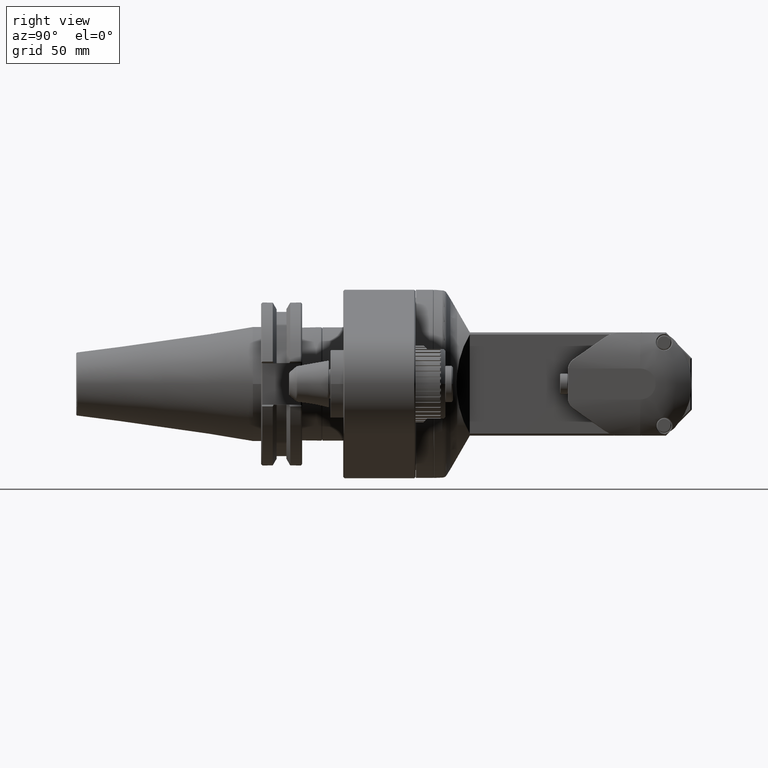
[diagram: clean part render]
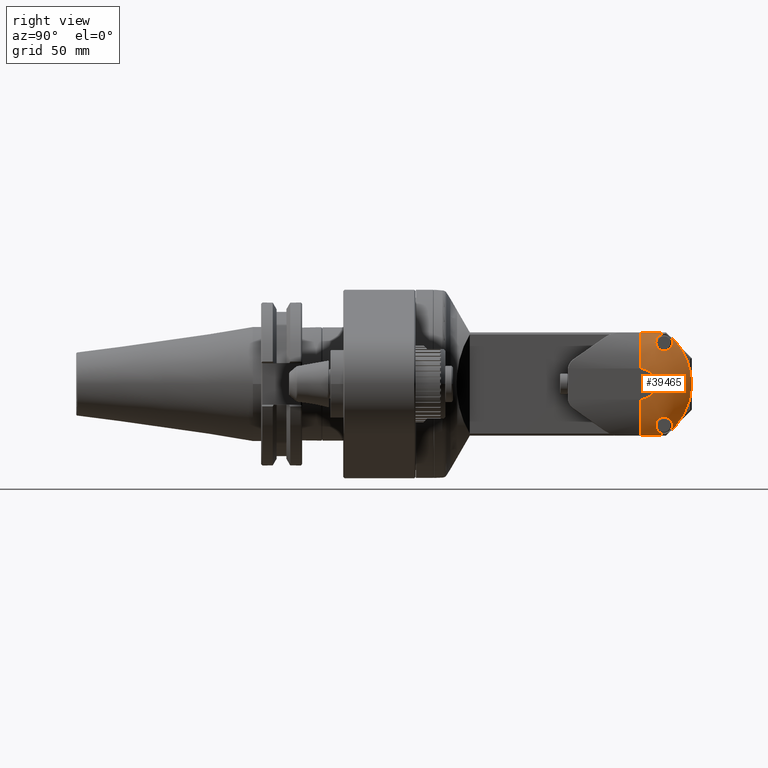
[diagram: same view with one face highlighted and labeled with its STEP entity id]
A machine part, right view. The second image highlights one B-rep face of the part: STEP entity #39465.
In plain terms, the highlighted face is a freeform B-spline surface patch.
Its self-contained STEP definition (entity closure, byte-faithful):
#81=(
BOUNDED_SURFACE()
B_SPLINE_SURFACE(2,2,((#60896,#60897,#60898,#60899,#60900),(#60901,#60902,
#60903,#60904,#60905),(#60906,#60907,#60908,#60909,#60910)),
 .UNSPECIFIED.,.F.,.F.,.F.)
B_SPLINE_SURFACE_WITH_KNOTS((3,3),(3,2,3),(-1.57079632679485,-0.893004761442043),
(-6.28318530769412,-4.71238898048121,-3.1415926532683),.UNSPECIFIED.)
GEOMETRIC_REPRESENTATION_ITEM()
RATIONAL_B_SPLINE_SURFACE(((1.,0.707106781038759,1.,0.707106781038759,1.),
(0.943122332929464,0.666888196963517,0.943122332929464,0.666888196963517,
0.943122332929464),(1.,0.707106781038759,1.,0.707106781038759,1.)))
REPRESENTATION_ITEM('')
SURFACE()
);
#422=B_SPLINE_CURVE_WITH_KNOTS('',3,(#60885,#60886,#60887,#60888,#60889,
#60890,#60891,#60892,#60893,#60894),.UNSPECIFIED.,.F.,.F.,(4,2,2,2,4),(1.0004943806874E-6,
0.157814875693478,0.314366626480191,0.470242782235776,0.626769771459922),
 .UNSPECIFIED.);
#423=B_SPLINE_CURVE_WITH_KNOTS('',3,(#60912,#60913,#60914,#60915,#60916,
#60917,#60918,#60919),.UNSPECIFIED.,.F.,.F.,(4,2,2,4),(9.9999992963221E-7,
0.0854694619164061,0.170408191879173,0.348615532683638),.UNSPECIFIED.);
#424=B_SPLINE_CURVE_WITH_KNOTS('',3,(#60921,#60922,#60923,#60924,#60925,
#60926,#60927,#60928,#60929,#60930,#60931,#60932,#60933,#60934,#60935,#60936,
#60937,#60938,#60939,#60940,#60941,#60942,#60943,#60944,#60945,#60946,#60947,
#60948,#60949,#60950,#60951,#60952,#60953,#60954,#60955,#60956,#60957,#60958,
#60959,#60960),.UNSPECIFIED.,.F.,.F.,(4,3,3,3,3,3,3,3,3,3,3,3,3,4),(0.000100864998235315,
0.1,0.2,0.285894547444253,0.3,0.4,0.5,0.6,0.64196743259335,0.7,0.8,0.891014049028824,
0.9,1.),.UNSPECIFIED.);
#425=B_SPLINE_CURVE_WITH_KNOTS('',3,(#60962,#60963,#60964,#60965,#60966,
#60967,#60968,#60969,#60970,#60971,#60972,#60973,#60974,#60975,#60976,#60977,
#60978,#60979,#60980,#60981,#60982,#60983,#60984,#60985,#60986,#60987,#60988,
#60989,#60990,#60991,#60992,#60993,#60994,#60995,#60996,#60997,#60998,#60999,
#61000,#61001,#61002,#61003,#61004,#61005,#61006,#61007,#61008,#61009,#61010,
#61011,#61012,#61013,#61014,#61015,#61016,#61017,#61018,#61019,#61020,#61021,
#61022,#61023,#61024,#61025,#61026,#61027,#61028,#61029,#61030,#61031,#61032,
#61033,#61034,#61035,#61036,#61037,#61038,#61039,#61040,#61041,#61042,#61043,
#61044,#61045,#61046,#61047,#61048,#61049,#61050,#61051,#61052,#61053,#61054,
#61055,#61056,#61057,#61058,#61059,#61060,#61061,#61062,#61063,#61064,#61065,
#61066,#61067,#61068,#61069,#61070,#61071,#61072,#61073,#61074,#61075,#61076,
#61077,#61078,#61079,#61080,#61081,#61082,#61083,#61084,#61085,#61086,#61087,
#61088,#61089,#61090,#61091,#61092,#61093,#61094,#61095,#61096,#61097,#61098,
#61099,#61100,#61101,#61102,#61103,#61104,#61105,#61106,#61107,#61108,#61109,
#61110,#61111,#61112,#61113,#61114,#61115,#61116,#61117,#61118,#61119,#61120,
#61121,#61122,#61123,#61124,#61125,#61126,#61127,#61128,#61129,#61130,#61131,
#61132,#61133,#61134,#61135,#61136,#61137,#61138,#61139,#61140,#61141,#61142,
#61143,#61144,#61145,#61146,#61147,#61148,#61149,#61150,#61151,#61152,#61153,
#61154,#61155,#61156,#61157,#61158,#61159,#61160,#61161,#61162,#61163,#61164,
#61165,#61166,#61167,#61168,#61169,#61170,#61171,#61172,#61173,#61174,#61175,
#61176,#61177,#61178,#61179,#61180,#61181,#61182,#61183,#61184,#61185,#61186,
#61187,#61188,#61189,#61190),.UNSPECIFIED.,.F.,.F.,(4,3,3,3,3,3,3,3,3,3,
3,3,3,3,3,3,3,3,3,3,3,3,3,3,3,3,3,3,3,3,3,3,3,3,3,3,3,3,3,3,3,3,3,3,3,3,
3,3,3,3,3,3,3,3,3,3,3,3,3,3,3,3,3,3,3,3,3,3,3,3,3,3,3,3,3,3,4),(0.,0.0163356288359518,
0.0188679245283,0.0346926329039527,0.0377358490566,0.05660377358491,0.0646737727480952,
0.07547169811321,0.09433962264151,0.111952078406985,0.1132075471698,0.128456366910192,
0.1320754716981,0.149620388686054,0.1509433962264,0.1698113207547,0.186791329729462,
0.188679245283,0.192733691074745,0.2075471698113,0.2264150943396,0.2452830188679,
0.254933335719172,0.2641509433962,0.28039526210857,0.2830188679245,0.299167157862746,
0.3018867924528,0.315371758306677,0.3207547169811,0.3396226415094,0.3584905660377,
0.37667322503627,0.377358490566,0.3962264150943,0.4150943396226,0.4339622641509,
0.439255873146877,0.4528301886792,0.4716981132075,0.4905660377358,0.502337490173039,
0.5094339622642,0.5283018867925,0.5471698113208,0.565355219960175,0.5660377358491,
0.5849056603774,0.6037735849057,0.622641509434,0.628110935348653,0.6415094339623,
0.6603773584906,0.6792452830189,0.690847156301581,0.6981132075472,0.7169811320755,
0.7358490566038,0.753722050235445,0.7547169811321,0.7735849056604,0.7924528301887,
0.811320754717,0.816644918073134,0.8301886792453,0.8490566037736,0.8679245283019,
0.880208581612648,0.8867924528302,0.9056603773585,0.9245283018868,0.941934675363264,
0.9433962264151,0.9622641509434,0.9811320754717,0.998432017312612,0.999999999999999),
 .UNSPECIFIED.);
#426=B_SPLINE_CURVE_WITH_KNOTS('',3,(#61192,#61193,#61194,#61195,#61196,
#61197,#61198,#61199,#61200,#61201,#61202,#61203,#61204,#61205,#61206,#61207),
 .UNSPECIFIED.,.F.,.F.,(4,2,2,2,2,2,2,4),(9.99999850287425E-7,0.0807427934397909,
0.168905441145293,0.229755665104549,0.314374986291498,0.397201268830059,
0.53778872497241,0.672052783523912),.UNSPECIFIED.);
#427=B_SPLINE_CURVE_WITH_KNOTS('',3,(#61209,#61210,#61211,#61212,#61213,
#61214),.UNSPECIFIED.,.F.,.F.,(4,2,4),(2.02244174890817E-8,0.121876985323974,
0.244289988535431),.UNSPECIFIED.);
#428=B_SPLINE_CURVE_WITH_KNOTS('',3,(#61216,#61217,#61218,#61219,#61220,
#61221,#61222,#61223,#61224,#61225,#61226,#61227,#61228,#61229,#61230,#61231,
#61232,#61233,#61234,#61235,#61236,#61237,#61238,#61239,#61240,#61241,#61242,
#61243,#61244,#61245,#61246,#61247,#61248,#61249,#61250,#61251,#61252,#61253,
#61254,#61255,#61256,#61257,#61258,#61259,#61260,#61261,#61262,#61263,#61264,
#61265,#61266,#61267,#61268,#61269,#61270,#61271,#61272,#61273,#61274,#61275,
#61276,#61277,#61278,#61279,#61280,#61281,#61282,#61283,#61284,#61285,#61286,
#61287,#61288,#61289,#61290,#61291,#61292,#61293,#61294,#61295,#61296,#61297,
#61298,#61299,#61300,#61301,#61302,#61303,#61304,#61305,#61306,#61307,#61308,
#61309,#61310,#61311,#61312,#61313,#61314,#61315,#61316,#61317,#61318,#61319,
#61320,#61321,#61322,#61323,#61324,#61325,#61326,#61327,#61328,#61329,#61330,
#61331,#61332,#61333,#61334,#61335,#61336,#61337,#61338,#61339,#61340,#61341,
#61342,#61343,#61344,#61345,#61346,#61347,#61348,#61349,#61350,#61351,#61352,
#61353,#61354,#61355,#61356,#61357,#61358,#61359,#61360,#61361,#61362,#61363,
#61364,#61365,#61366,#61367,#61368,#61369,#61370,#61371,#61372,#61373,#61374,
#61375,#61376,#61377,#61378,#61379,#61380,#61381,#61382,#61383,#61384,#61385,
#61386,#61387,#61388,#61389,#61390,#61391,#61392,#61393,#61394,#61395,#61396,
#61397,#61398,#61399,#61400,#61401,#61402,#61403,#61404,#61405,#61406,#61407,
#61408,#61409,#61410,#61411,#61412,#61413,#61414,#61415,#61416,#61417,#61418,
#61419,#61420,#61421,#61422,#61423,#61424,#61425,#61426,#61427,#61428,#61429,
#61430,#61431,#61432,#61433,#61434,#61435,#61436,#61437,#61438,#61439,#61440,
#61441),.UNSPECIFIED.,.F.,.F.,(4,3,3,3,3,3,3,3,3,3,3,3,3,3,3,3,3,3,3,3,
3,3,3,3,3,3,3,3,3,3,3,3,3,3,3,3,3,3,3,3,3,3,3,3,3,3,3,3,3,3,3,3,3,3,3,3,
3,3,3,3,3,3,3,3,3,3,3,3,3,3,3,3,3,3,3,4),(0.,0.0218157492230092,0.02564102564103,
0.0433933295113066,0.05128205128205,0.069831164475093,0.07692307692308,
0.0957517830954174,0.1025641025641,0.11823545117402,0.1282051282051,0.145013124187411,
0.1538461538462,0.169247854485006,0.1794871794872,0.191491672977485,0.2051282051282,
0.220140113212007,0.2307692307692,0.246254415181418,0.2564102564103,0.272829890653367,
0.279627046364396,0.2820512820513,0.302091889314179,0.3076923076923,0.332042071753654,
0.3333333333333,0.354890030649909,0.3589743589744,0.367785325889595,0.3846153846154,
0.408598838689192,0.4102564102564,0.4358974358974,0.455928986198655,0.4615384615385,
0.4871794871795,0.5128205128205,0.5384615384615,0.544072986976258,0.5641025641026,
0.5897435897436,0.613675162992775,0.6153846153846,0.632216054679215,0.6410256410256,
0.662516393566778,0.6666666666667,0.690903563220789,0.6923076923077,0.712297107544378,
0.7179487179487,0.720379313791694,0.736778583481186,0.7435897435897,0.759055984132376,
0.7692307692308,0.784227936953341,0.7948717948718,0.808506420530279,0.8205128205128,
0.8358988551692,0.8461538461538,0.862945047005333,0.8717948717949,0.887454060305961,
0.8974358974359,0.904254351262805,0.9230769230769,0.941603701396546,0.9487179487179,
0.966454960809376,0.974358974359,0.996224092707733,1.),.UNSPECIFIED.);
#429=B_SPLINE_CURVE_WITH_KNOTS('',3,(#61443,#61444,#61445,#61446,#61447,
#61448),.UNSPECIFIED.,.F.,.F.,(4,2,4),(9.99999961642795E-7,0.117696327444927,
0.244617771734762),.UNSPECIFIED.);
#430=B_SPLINE_CURVE_WITH_KNOTS('',3,(#61450,#61451,#61452,#61453,#61454,
#61455,#61456,#61457,#61458,#61459,#61460,#61461,#61462,#61463,#61464,#61465,
#61466,#61467,#61468,#61469,#61470,#61471,#61472,#61473,#61474,#61475,#61476,
#61477,#61478,#61479,#61480,#61481,#61482,#61483,#61484,#61485,#61486,#61487,
#61488,#61489,#61490,#61491,#61492,#61493,#61494,#61495),.UNSPECIFIED.,
 .F.,.F.,(4,3,3,3,3,3,3,3,3,3,3,3,3,3,3,4),(0.,0.08333333333333,0.0961709016195006,
0.1666666666667,0.25,0.3333333333333,0.397370136493364,0.4166666666667,
0.5,0.5833333333333,0.6666666666667,0.697696039474228,0.75,0.8333333333333,
0.9166666666667,1.),.UNSPECIFIED.);
#431=B_SPLINE_CURVE_WITH_KNOTS('',3,(#61497,#61498,#61499,#61500,#61501,
#61502,#61503,#61504,#61505,#61506,#61507,#61508,#61509,#61510,#61511,#61512,
#61513,#61514,#61515,#61516,#61517,#61518,#61519,#61520,#61521,#61522,#61523,
#61524,#61525,#61526,#61527,#61528,#61529,#61530,#61531,#61532,#61533,#61534,
#61535,#61536,#61537,#61538,#61539,#61540,#61541,#61542,#61543,#61544,#61545,
#61546,#61547,#61548,#61549,#61550,#61551,#61552,#61553,#61554,#61555,#61556,
#61557,#61558,#61559,#61560,#61561,#61562,#61563,#61564,#61565,#61566,#61567,
#61568,#61569,#61570,#61571,#61572,#61573,#61574,#61575,#61576,#61577,#61578,
#61579,#61580,#61581,#61582,#61583,#61584,#61585,#61586,#61587,#61588,#61589,
#61590,#61591,#61592,#61593,#61594,#61595,#61596,#61597,#61598,#61599,#61600,
#61601,#61602,#61603,#61604,#61605,#61606,#61607,#61608,#61609,#61610,#61611,
#61612,#61613,#61614,#61615,#61616,#61617,#61618,#61619,#61620,#61621,#61622,
#61623,#61624,#61625,#61626,#61627,#61628,#61629,#61630,#61631,#61632,#61633,
#61634,#61635,#61636,#61637,#61638,#61639,#61640,#61641,#61642,#61643,#61644,
#61645,#61646,#61647,#61648,#61649,#61650,#61651,#61652,#61653,#61654,#61655,
#61656,#61657,#61658,#61659,#61660,#61661,#61662,#61663,#61664,#61665,#61666,
#61667,#61668,#61669,#61670,#61671,#61672,#61673,#61674,#61675,#61676,#61677,
#61678,#61679,#61680,#61681,#61682,#61683,#61684,#61685,#61686,#61687,#61688,
#61689,#61690,#61691,#61692,#61693,#61694,#61695,#61696,#61697,#61698,#61699,
#61700,#61701,#61702,#61703,#61704,#61705,#61706,#61707,#61708,#61709,#61710,
#61711,#61712,#61713,#61714,#61715,#61716,#61717,#61718,#61719,#61720,#61721,
#61722),.UNSPECIFIED.,.F.,.F.,(4,3,3,3,3,3,3,3,3,3,3,3,3,3,3,3,3,3,3,3,
3,3,3,3,3,3,3,3,3,3,3,3,3,3,3,3,3,3,3,3,3,3,3,3,3,3,3,3,3,3,3,3,3,3,3,3,
3,3,3,3,3,3,3,3,3,3,3,3,3,3,3,3,3,3,3,4),(0.,0.0163299030891859,0.0188679245283,
0.0346877549925839,0.0377358490566,0.05660377358491,0.07547169811321,0.09433962264151,
0.111951799843269,0.1132075471698,0.128460060129244,0.1320754716981,0.149619903715947,
0.1509433962264,0.1698113207547,0.186790192313566,0.188679245283,0.192733050777579,
0.2075471698113,0.2264150943396,0.2452830188679,0.254927864187287,0.2641509433962,
0.280407308663493,0.2830188679245,0.299177214845531,0.3018867924528,0.315367017879508,
0.3207547169811,0.3396226415094,0.3584905660377,0.376668679816641,0.377358490566,
0.3962264150943,0.4150943396226,0.4339622641509,0.439250875942235,0.4528301886792,
0.4716981132075,0.4905660377358,0.502331339694416,0.5094339622642,0.5283018867925,
0.5471698113208,0.565347286096256,0.5660377358491,0.5849056603774,0.6037735849057,
0.622641509434,0.628097180948078,0.6415094339623,0.6603773584906,0.6792452830189,
0.690823078524005,0.6981132075472,0.7169811320755,0.7358490566038,0.753695959257206,
0.7547169811321,0.7735849056604,0.7924528301887,0.811320754717,0.816617296401241,
0.8301886792453,0.8490566037736,0.8679245283019,0.880176033154837,0.8867924528302,
0.9056603773585,0.9245283018868,0.941911210703653,0.9433962264151,0.9622641509434,
0.9811320754717,0.998439794175199,1.),.UNSPECIFIED.);
#432=B_SPLINE_CURVE_WITH_KNOTS('',3,(#61724,#61725,#61726,#61727,#61728,
#61729,#61730,#61731,#61732,#61733,#61734,#61735,#61736,#61737,#61738,#61739,
#61740,#61741),.UNSPECIFIED.,.F.,.F.,(4,2,2,2,2,2,2,2,4),(9.99999841166331E-7,
0.0892758669457366,0.187315941780521,0.254259163724964,0.292410680808495,
0.333854681208744,0.405562649969491,0.506158613048796,0.596167474440341),
 .UNSPECIFIED.);
#433=B_SPLINE_CURVE_WITH_KNOTS('',3,(#61743,#61744,#61745,#61746,#61747,
#61748,#61749,#61750),.UNSPECIFIED.,.F.,.F.,(4,2,2,4),(2.26890924434023E-5,
0.178455543517791,0.263170746720594,0.348325255578609),.UNSPECIFIED.);
#434=B_SPLINE_CURVE_WITH_KNOTS('',3,(#61752,#61753,#61754,#61755,#61756,
#61757,#61758,#61759,#61760,#61761,#61762,#61763,#61764,#61765),
 .UNSPECIFIED.,.F.,.F.,(4,1,1,1,1,1,1,1,1,1,1,4),(0.,0.09090909090909,0.1818181818182,
0.2727272727273,0.3636363636364,0.4545454545455,0.5454545454545,0.6363636363636,
0.7272727272727,0.8181818181818,0.9090909090909,1.),.UNSPECIFIED.);
#1243=CIRCLE('',#41775,6.);
#1244=CIRCLE('',#41778,25.);
#1245=CIRCLE('',#41780,25.);
#2653=FACE_OUTER_BOUND('',#4870,.T.);
#4870=EDGE_LOOP('',(#30055,#30056,#30057,#30058,#30059,#30060,#30061,#30062,
#30063,#30064,#30065,#30066,#30067,#30068,#30069,#30070));
#17481=VERTEX_POINT('',#60758);
#17482=VERTEX_POINT('',#60760);
#17485=VERTEX_POINT('',#60819);
#17487=VERTEX_POINT('',#60884);
#17488=VERTEX_POINT('',#60911);
#17489=VERTEX_POINT('',#60920);
#17490=VERTEX_POINT('',#60961);
#17491=VERTEX_POINT('',#61191);
#17492=VERTEX_POINT('',#61208);
#17493=VERTEX_POINT('',#61215);
#17494=VERTEX_POINT('',#61442);
#17495=VERTEX_POINT('',#61449);
#17496=VERTEX_POINT('',#61496);
#17497=VERTEX_POINT('',#61723);
#17498=VERTEX_POINT('',#61742);
#17499=VERTEX_POINT('',#61751);
#22051=EDGE_CURVE('',#17481,#17482,#1243,.T.);
#22057=EDGE_CURVE('',#17485,#17481,#1244,.T.);
#22062=EDGE_CURVE('',#17485,#17487,#422,.T.);
#22064=EDGE_CURVE('',#17487,#17488,#423,.T.);
#22065=EDGE_CURVE('',#17488,#17489,#424,.T.);
#22066=EDGE_CURVE('',#17489,#17490,#425,.T.);
#22067=EDGE_CURVE('',#17490,#17491,#426,.T.);
#22068=EDGE_CURVE('',#17491,#17492,#427,.T.);
#22069=EDGE_CURVE('',#17492,#17493,#428,.T.);
#22070=EDGE_CURVE('',#17493,#17494,#429,.T.);
#22071=EDGE_CURVE('',#17494,#17495,#430,.T.);
#22072=EDGE_CURVE('',#17495,#17496,#431,.T.);
#22073=EDGE_CURVE('',#17496,#17497,#432,.T.);
#22074=EDGE_CURVE('',#17497,#17498,#433,.T.);
#22075=EDGE_CURVE('',#17498,#17499,#434,.T.);
#22076=EDGE_CURVE('',#17482,#17499,#1245,.T.);
#30055=ORIENTED_EDGE('',*,*,#22064,.T.);
#30056=ORIENTED_EDGE('',*,*,#22065,.T.);
#30057=ORIENTED_EDGE('',*,*,#22066,.T.);
#30058=ORIENTED_EDGE('',*,*,#22067,.T.);
#30059=ORIENTED_EDGE('',*,*,#22068,.T.);
#30060=ORIENTED_EDGE('',*,*,#22069,.T.);
#30061=ORIENTED_EDGE('',*,*,#22070,.T.);
#30062=ORIENTED_EDGE('',*,*,#22071,.T.);
#30063=ORIENTED_EDGE('',*,*,#22072,.T.);
#30064=ORIENTED_EDGE('',*,*,#22073,.T.);
#30065=ORIENTED_EDGE('',*,*,#22074,.T.);
#30066=ORIENTED_EDGE('',*,*,#22075,.T.);
#30067=ORIENTED_EDGE('',*,*,#22076,.F.);
#30068=ORIENTED_EDGE('',*,*,#22051,.F.);
#30069=ORIENTED_EDGE('',*,*,#22057,.F.);
#30070=ORIENTED_EDGE('',*,*,#22062,.T.);
#39465=ADVANCED_FACE('',(#2653),#81,.F.);
#41775=AXIS2_PLACEMENT_3D('',#60761,#47917,#47918);
#41778=AXIS2_PLACEMENT_3D('',#60821,#47927,#47928);
#41780=AXIS2_PLACEMENT_3D('',#61766,#47934,#47935);
#47917=DIRECTION('center_axis',(1.,0.,0.));
#47918=DIRECTION('ref_axis',(0.,0.,-1.));
#47927=DIRECTION('center_axis',(0.,-1.,0.));
#47928=DIRECTION('ref_axis',(0.830880016908224,0.,-0.556451612903216));
#47934=DIRECTION('center_axis',(0.,-1.,0.));
#47935=DIRECTION('ref_axis',(1.,0.,0.));
#60758=CARTESIAN_POINT('',(40.5,107.9,-6.));
#60760=CARTESIAN_POINT('',(40.5,107.9,6.));
#60761=CARTESIAN_POINT('Origin',(40.5,107.9,0.));
#60819=CARTESIAN_POINT('',(36.2720004227004,107.899999993644,-19.9112903225856));
#60821=CARTESIAN_POINT('Origin',(15.5,107.9,-6.));
#60884=CARTESIAN_POINT('',(35.6034741882,114.1157638942,-19.91348815148));
#60885=CARTESIAN_POINT('Ctrl Pts',(36.2720004226879,107.899999993644,-19.9112903225925));
#60886=CARTESIAN_POINT('Ctrl Pts',(36.2720004228036,108.426047071499,-19.911290322589));
#60887=CARTESIAN_POINT('Ctrl Pts',(36.2581406224038,108.951166991399,-19.9112038002568));
#60888=CARTESIAN_POINT('Ctrl Pts',(36.2022638994613,109.997606177812,-19.9115048311391));
#60889=CARTESIAN_POINT('Ctrl Pts',(36.1605706262148,110.517100173655,-19.9118485807803));
#60890=CARTESIAN_POINT('Ctrl Pts',(36.0499368999614,111.550133755398,-19.9122234871886));
#60891=CARTESIAN_POINT('Ctrl Pts',(35.9808701599676,112.065553053532,-19.9122692090973));
#60892=CARTESIAN_POINT('Ctrl Pts',(35.8138741481395,113.093831338889,-19.9127363946431));
#60893=CARTESIAN_POINT('Ctrl Pts',(35.7159797836321,113.606056680928,-19.9131519533532));
#60894=CARTESIAN_POINT('Ctrl Pts',(35.6034741882102,114.115763894202,-19.913488151479));
#60896=CARTESIAN_POINT('Ctrl Pts',(40.4999999999981,107.899999996958,5.99999999995655));
#60897=CARTESIAN_POINT('Ctrl Pts',(40.4999999999983,113.89999999942,6.00000000304374));
#60898=CARTESIAN_POINT('Ctrl Pts',(40.4999999999997,113.9,5.80969641299898E-10));
#60899=CARTESIAN_POINT('Ctrl Pts',(40.5000000000012,113.900000000579,-6.00000000188179));
#60900=CARTESIAN_POINT('Ctrl Pts',(40.5000000000009,107.899999998116,-5.99999999995286));
#60901=CARTESIAN_POINT('Ctrl Pts',(40.4999999999956,107.899999992423,14.8123743707774));
#60902=CARTESIAN_POINT('Ctrl Pts',(40.4999999999962,122.712374369391,14.8123743783988));
#60903=CARTESIAN_POINT('Ctrl Pts',(40.4999999999997,122.71237437082,1.43154732726068E-9));
#60904=CARTESIAN_POINT('Ctrl Pts',(40.5000000000033,122.71237437225,-14.8123743755357));
#60905=CARTESIAN_POINT('Ctrl Pts',(40.5000000000026,107.899999995283,-14.8123743707737));
#60906=CARTESIAN_POINT('Ctrl Pts',(34.9739867434897,107.899999988892,21.6768568378262));
#60907=CARTESIAN_POINT('Ctrl Pts',(34.9739867434906,129.576856835778,21.6768568489796));
#60908=CARTESIAN_POINT('Ctrl Pts',(34.9739867434958,129.576856837871,2.09279321819924E-9));
#60909=CARTESIAN_POINT('Ctrl Pts',(34.973986743501,129.576856839963,-21.676856844794));
#60910=CARTESIAN_POINT('Ctrl Pts',(34.9739867435,107.899999993076,-21.6768568378252));
#60911=CARTESIAN_POINT('',(35.0606968298288,117.487353358297,-19.3205624869717));
#60912=CARTESIAN_POINT('Ctrl Pts',(35.6034741882144,114.115763894203,-19.9134881514728));
#60913=CARTESIAN_POINT('Ctrl Pts',(35.542068391445,114.393963191091,-19.9136716491571));
#60914=CARTESIAN_POINT('Ctrl Pts',(35.4841922649609,114.674664018157,-19.9015817232566));
#60915=CARTESIAN_POINT('Ctrl Pts',(35.3771076013652,115.230486370154,-19.8544073652107));
#60916=CARTESIAN_POINT('Ctrl Pts',(35.3271197693903,115.509399745723,-19.8191448987558));
#60917=CARTESIAN_POINT('Ctrl Pts',(35.1868873838855,116.365401418139,-19.6731155671511));
#60918=CARTESIAN_POINT('Ctrl Pts',(35.1130466639542,116.932584801413,-19.5224224362836));
#60919=CARTESIAN_POINT('Ctrl Pts',(35.0607240526745,117.48721493447,-19.3205936495037));
#60920=CARTESIAN_POINT('',(35.93244436872,115.5934501193,-18.89948951913));
#60921=CARTESIAN_POINT('Ctrl Pts',(35.0607234804543,117.48721473202,-19.3205932415108));
#60922=CARTESIAN_POINT('Ctrl Pts',(35.0784036738116,117.426521314306,-19.3259129613391));
#60923=CARTESIAN_POINT('Ctrl Pts',(35.0972286176766,117.365317129173,-19.32954623504));
#60924=CARTESIAN_POINT('Ctrl Pts',(35.1172586448748,117.303506310057,-19.3314152373066));
#60925=CARTESIAN_POINT('Ctrl Pts',(35.1373088957583,117.241633082511,-19.3332861266457));
#60926=CARTESIAN_POINT('Ctrl Pts',(35.1585720730142,117.179153868937,-19.3333861216507));
#60927=CARTESIAN_POINT('Ctrl Pts',(35.1809952894615,117.116327271864,-19.3316275942389));
#60928=CARTESIAN_POINT('Ctrl Pts',(35.2002556097513,117.062362650633,-19.3301171150768));
#60929=CARTESIAN_POINT('Ctrl Pts',(35.2203685504517,117.008140972449,-19.3272369586994));
#60930=CARTESIAN_POINT('Ctrl Pts',(35.2413671592848,116.953632871142,-19.3229302436466));
#60931=CARTESIAN_POINT('Ctrl Pts',(35.2448155141507,116.94468164595,-19.3222230024229));
#60932=CARTESIAN_POINT('Ctrl Pts',(35.2482877768808,116.935722689979,-19.32147725206));
#60933=CARTESIAN_POINT('Ctrl Pts',(35.2517840147386,116.926756002552,-19.3206927622504));
#60934=CARTESIAN_POINT('Ctrl Pts',(35.2765704428519,116.863187057202,-19.3151311554423));
#60935=CARTESIAN_POINT('Ctrl Pts',(35.3025650794964,116.799225368902,-19.3076221625017));
#60936=CARTESIAN_POINT('Ctrl Pts',(35.3297099905952,116.735074715265,-19.298107511975));
#60937=CARTESIAN_POINT('Ctrl Pts',(35.3568549016941,116.670924061629,-19.2885928614483));
#60938=CARTESIAN_POINT('Ctrl Pts',(35.3851482514419,116.606583472949,-19.2770735574065));
#60939=CARTESIAN_POINT('Ctrl Pts',(35.4145863183601,116.542129229862,-19.2634739297778));
#60940=CARTESIAN_POINT('Ctrl Pts',(35.4440243852783,116.477674986775,-19.2498743021491));
#60941=CARTESIAN_POINT('Ctrl Pts',(35.4746085185077,116.413107963996,-19.2341936525877));
#60942=CARTESIAN_POINT('Ctrl Pts',(35.5062878890071,116.348605217082,-19.2163697042032));
#60943=CARTESIAN_POINT('Ctrl Pts',(35.5195829074674,116.321535070249,-19.2088894506794));
#60944=CARTESIAN_POINT('Ctrl Pts',(35.5330709210382,116.294476405755,-19.2010321064905));
#60945=CARTESIAN_POINT('Ctrl Pts',(35.5467424142119,116.267453152619,-19.1927975473007));
#60946=CARTESIAN_POINT('Ctrl Pts',(35.5656473554992,116.230085397141,-19.1814107985359));
#60947=CARTESIAN_POINT('Ctrl Pts',(35.5849032376691,116.192785399654,-19.1693025273152));
#60948=CARTESIAN_POINT('Ctrl Pts',(35.6044825356661,116.155615900776,-19.1564773332003));
#60949=CARTESIAN_POINT('Ctrl Pts',(35.6382210016206,116.091566522057,-19.1343773388555));
#60950=CARTESIAN_POINT('Ctrl Pts',(35.6729177786952,116.027902681321,-19.1101474703455));
#60951=CARTESIAN_POINT('Ctrl Pts',(35.7085568198444,115.964697573245,-19.083729369197));
#60952=CARTESIAN_POINT('Ctrl Pts',(35.7409933542293,115.907172045192,-19.0596851856652));
#60953=CARTESIAN_POINT('Ctrl Pts',(35.7742134761743,115.85002884964,-19.0338275791323));
#60954=CARTESIAN_POINT('Ctrl Pts',(35.8080739090498,115.793538581139,-19.0062229474494));
#60955=CARTESIAN_POINT('Ctrl Pts',(35.811416999407,115.787961213815,-19.0034975015482));
#60956=CARTESIAN_POINT('Ctrl Pts',(35.8147663164332,115.782390201127,-19.0007550637683));
#60957=CARTESIAN_POINT('Ctrl Pts',(35.8181217125014,115.776825796483,-18.9979957230895));
#60958=CARTESIAN_POINT('Ctrl Pts',(35.8554621796258,115.71490241562,-18.9672884480598));
#60959=CARTESIAN_POINT('Ctrl Pts',(35.8935523626914,115.653794420645,-18.9344844761867));
#60960=CARTESIAN_POINT('Ctrl Pts',(35.9324443687597,115.593450119335,-18.8994895191139));
#60961=CARTESIAN_POINT('',(37.84309756068,118.8068445836,-13.31960800965));
#60962=CARTESIAN_POINT('Ctrl Pts',(35.9324443687283,115.593450119307,-18.8994895191266));
#60963=CARTESIAN_POINT('Ctrl Pts',(35.9669640512004,115.53971328706,-18.8685006455309));
#60964=CARTESIAN_POINT('Ctrl Pts',(36.0021148561819,115.486628154623,-18.835765912733));
#60965=CARTESIAN_POINT('Ctrl Pts',(36.0379475488213,115.434130559402,-18.8011823532202));
#60966=CARTESIAN_POINT('Ctrl Pts',(36.0435022155028,115.42599255409,-18.7958213230658));
#60967=CARTESIAN_POINT('Ctrl Pts',(36.0490732814444,115.417868734409,-18.7904157897169));
#60968=CARTESIAN_POINT('Ctrl Pts',(36.054660948746,115.409758937424,-18.7849652880489));
#60969=CARTESIAN_POINT('Ctrl Pts',(36.0895791479969,115.359079558764,-18.7509042581075));
#60970=CARTESIAN_POINT('Ctrl Pts',(36.1251502123674,115.308948788726,-18.7150905417852));
#60971=CARTESIAN_POINT('Ctrl Pts',(36.1611860191186,115.259655341299,-18.6776602824942));
#60972=CARTESIAN_POINT('Ctrl Pts',(36.1681159887949,115.250175822823,-18.6704621486033));
#60973=CARTESIAN_POINT('Ctrl Pts',(36.1750631037434,115.24072721189,-18.6632043682676));
#60974=CARTESIAN_POINT('Ctrl Pts',(36.1820259695267,115.231311473428,-18.6558881026896));
#60975=CARTESIAN_POINT('Ctrl Pts',(36.2251957016495,115.172933943286,-18.6105272936534));
#60976=CARTESIAN_POINT('Ctrl Pts',(36.2689712932431,115.115821425801,-18.5629112764884));
#60977=CARTESIAN_POINT('Ctrl Pts',(36.3131226273858,115.060284850161,-18.513252906172));
#60978=CARTESIAN_POINT('Ctrl Pts',(36.3320065925538,115.036531303858,-18.4920135268064));
#60979=CARTESIAN_POINT('Ctrl Pts',(36.3509587914859,115.013065761167,-18.4704005661817));
#60980=CARTESIAN_POINT('Ctrl Pts',(36.3699721341323,114.989897455264,-18.4484191849652));
#60981=CARTESIAN_POINT('Ctrl Pts',(36.3954126144454,114.958897496911,-18.4190073710358));
#60982=CARTESIAN_POINT('Ctrl Pts',(36.4209625732584,114.92842962111,-18.3889359907636));
#60983=CARTESIAN_POINT('Ctrl Pts',(36.4466049086564,114.898517451042,-18.3582165652499));
#60984=CARTESIAN_POINT('Ctrl Pts',(36.49141144627,114.846249950737,-18.3045384944587));
#60985=CARTESIAN_POINT('Ctrl Pts',(36.536503013494,114.795681449708,-18.2488816230533));
#60986=CARTESIAN_POINT('Ctrl Pts',(36.581619096884,114.747116994186,-18.1915322981679));
#60987=CARTESIAN_POINT('Ctrl Pts',(36.623733163104,114.70178400998,-18.1379989884385));
#60988=CARTESIAN_POINT('Ctrl Pts',(36.6658689028372,114.658196985947,-18.0829912331902));
#60989=CARTESIAN_POINT('Ctrl Pts',(36.7078079124333,114.616573939774,-18.0267960611776));
#60990=CARTESIAN_POINT('Ctrl Pts',(36.7107974510412,114.613606923988,-18.0227903004806));
#60991=CARTESIAN_POINT('Ctrl Pts',(36.7137859913657,114.610649869117,-18.0187785179288));
#60992=CARTESIAN_POINT('Ctrl Pts',(36.7167734550628,114.60770284543,-18.0147608227271));
#60993=CARTESIAN_POINT('Ctrl Pts',(36.7530589420046,114.571908539504,-17.9659622291525));
#60994=CARTESIAN_POINT('Ctrl Pts',(36.7891834139877,114.537595734023,-17.9162931466953));
#60995=CARTESIAN_POINT('Ctrl Pts',(36.8251058316147,114.504794106758,-17.8658248524192));
#60996=CARTESIAN_POINT('Ctrl Pts',(36.8336315402164,114.497009076289,-17.8538468732338));
#60997=CARTESIAN_POINT('Ctrl Pts',(36.8421458763165,114.489309176538,-17.841823840931));
#60998=CARTESIAN_POINT('Ctrl Pts',(36.8506478209608,114.481694555504,-17.8297581281857));
#60999=CARTESIAN_POINT('Ctrl Pts',(36.891864066901,114.444779931101,-17.7712652298249));
#61000=CARTESIAN_POINT('Ctrl Pts',(36.9327889061841,114.409865133269,-17.7117478593131));
#61001=CARTESIAN_POINT('Ctrl Pts',(36.9733812120482,114.376923321877,-17.6513072422334));
#61002=CARTESIAN_POINT('Ctrl Pts',(36.9764421513947,114.374439282488,-17.6467496035626));
#61003=CARTESIAN_POINT('Ctrl Pts',(36.979501197688,114.371966483225,-17.6421867033625));
#61004=CARTESIAN_POINT('Ctrl Pts',(36.9825583319578,114.369504923143,-17.6376185797417));
#61005=CARTESIAN_POINT('Ctrl Pts',(37.0261573114927,114.334399658486,-17.5724707940456));
#61006=CARTESIAN_POINT('Ctrl Pts',(37.0693689944142,114.301576555172,-17.5062634070611));
#61007=CARTESIAN_POINT('Ctrl Pts',(37.1120785138349,114.271097523819,-17.4392007553692));
#61008=CARTESIAN_POINT('Ctrl Pts',(37.1505145390576,114.243668209845,-17.3788483607064));
#61009=CARTESIAN_POINT('Ctrl Pts',(37.1885427552466,114.21813740967,-17.3178033365377));
#61010=CARTESIAN_POINT('Ctrl Pts',(37.2261206929197,114.194548465224,-17.2561408140463));
#61011=CARTESIAN_POINT('Ctrl Pts',(37.2302987809943,114.191925737805,-17.249284890975));
#61012=CARTESIAN_POINT('Ctrl Pts',(37.2344712829797,114.189327065201,-17.2424213349412));
#61013=CARTESIAN_POINT('Ctrl Pts',(37.2386381247854,114.186752544775,-17.2355502511425));
#61014=CARTESIAN_POINT('Ctrl Pts',(37.2475867423188,114.181223561508,-17.2207940631657));
#61015=CARTESIAN_POINT('Ctrl Pts',(37.2565104673123,114.175805059636,-17.2060026937559));
#61016=CARTESIAN_POINT('Ctrl Pts',(37.2654077721268,114.170498635512,-17.1911779341611));
#61017=CARTESIAN_POINT('Ctrl Pts',(37.2979153064366,114.151110880693,-17.1370136235965));
#61018=CARTESIAN_POINT('Ctrl Pts',(37.3300707761477,114.133218186113,-17.0824029321363));
#61019=CARTESIAN_POINT('Ctrl Pts',(37.3618568213846,114.116808126832,-17.0273921197257));
#61020=CARTESIAN_POINT('Ctrl Pts',(37.4023427000394,114.095906638025,-16.9573248603559));
#61021=CARTESIAN_POINT('Ctrl Pts',(37.4422256472429,114.07741715101,-16.886611173848));
#61022=CARTESIAN_POINT('Ctrl Pts',(37.4813079318513,114.061382710235,-16.8156583776787));
#61023=CARTESIAN_POINT('Ctrl Pts',(37.5203902164597,114.04534826946,-16.7447055815093));
#61024=CARTESIAN_POINT('Ctrl Pts',(37.5586715243943,114.031768471398,-16.6735136030998));
#61025=CARTESIAN_POINT('Ctrl Pts',(37.5959865213738,114.020631953565,-16.6024801706163));
#61026=CARTESIAN_POINT('Ctrl Pts',(37.6150719032141,114.014935994503,-16.5661489286998));
#61027=CARTESIAN_POINT('Ctrl Pts',(37.6339077655422,114.00987773597,-16.5298522937942));
#61028=CARTESIAN_POINT('Ctrl Pts',(37.6524857560545,114.005450328744,-16.4936189550236));
#61029=CARTESIAN_POINT('Ctrl Pts',(37.6702307307128,114.001221441396,-16.4590102777374));
#61030=CARTESIAN_POINT('Ctrl Pts',(37.6877403967505,113.997568128322,-16.424459417683));
#61031=CARTESIAN_POINT('Ctrl Pts',(37.7050205222965,113.994480471211,-16.3899665505102));
#61032=CARTESIAN_POINT('Ctrl Pts',(37.7354735288244,113.989039049973,-16.3291792890764));
#61033=CARTESIAN_POINT('Ctrl Pts',(37.7652049269846,113.985357984121,-16.2685925649392));
#61034=CARTESIAN_POINT('Ctrl Pts',(37.7941303394488,113.983384275018,-16.2084456503297));
#61035=CARTESIAN_POINT('Ctrl Pts',(37.79880205771,113.983065502974,-16.1987313743558));
#61036=CARTESIAN_POINT('Ctrl Pts',(37.8034527981743,113.982791170224,-16.1890285482525));
#61037=CARTESIAN_POINT('Ctrl Pts',(37.8080822586071,113.982560943038,-16.17933815274));
#61038=CARTESIAN_POINT('Ctrl Pts',(37.836576580762,113.981143895051,-16.119693782613));
#61039=CARTESIAN_POINT('Ctrl Pts',(37.8642630942489,113.981401454108,-16.0605209690359));
#61040=CARTESIAN_POINT('Ctrl Pts',(37.8910748445362,113.983227369967,-16.0020678680447));
#61041=CARTESIAN_POINT('Ctrl Pts',(37.8955903792325,113.983534883887,-15.9922234154147));
#61042=CARTESIAN_POINT('Ctrl Pts',(37.9000811545001,113.983886782192,-15.9823993382643));
#61043=CARTESIAN_POINT('Ctrl Pts',(37.9045469132978,113.984282438475,-15.9725967739049));
#61044=CARTESIAN_POINT('Ctrl Pts',(37.9266898162888,113.986244250364,-15.9239919921631));
#61045=CARTESIAN_POINT('Ctrl Pts',(37.948214284649,113.989284787043,-15.8759150787757));
#61046=CARTESIAN_POINT('Ctrl Pts',(37.9691411451022,113.993332385733,-15.828387688685));
#61047=CARTESIAN_POINT('Ctrl Pts',(37.9774947758215,113.994948115184,-15.8094155993573));
#61048=CARTESIAN_POINT('Ctrl Pts',(37.9857531765002,113.996724332451,-15.7905310664793));
#61049=CARTESIAN_POINT('Ctrl Pts',(37.9939176903232,113.998657790194,-15.7717342767946));
#61050=CARTESIAN_POINT('Ctrl Pts',(38.0225353037843,114.005434794622,-15.7058492439353));
#61051=CARTESIAN_POINT('Ctrl Pts',(38.0500015230466,114.014138192611,-15.6410510011528));
#61052=CARTESIAN_POINT('Ctrl Pts',(38.0763688312285,114.024624995769,-15.5773609514061));
#61053=CARTESIAN_POINT('Ctrl Pts',(38.1027361394104,114.035111798927,-15.5136709016595));
#61054=CARTESIAN_POINT('Ctrl Pts',(38.1280049100226,114.047382497653,-15.4510892110603));
#61055=CARTESIAN_POINT('Ctrl Pts',(38.1522097656592,114.06127544973,-15.3896916692309));
#61056=CARTESIAN_POINT('Ctrl Pts',(38.1755355233751,114.074663822666,-15.33052402921));
#61057=CARTESIAN_POINT('Ctrl Pts',(38.1978719751897,114.089557496211,-15.2724553832937));
#61058=CARTESIAN_POINT('Ctrl Pts',(38.2193114729689,114.105863114008,-15.2153788805473));
#61059=CARTESIAN_POINT('Ctrl Pts',(38.2201194817867,114.10647763787,-15.2132277892304));
#61060=CARTESIAN_POINT('Ctrl Pts',(38.220926214938,114.107094170251,-15.2110781085395));
#61061=CARTESIAN_POINT('Ctrl Pts',(38.2217316763805,114.107712708482,-15.2089298329327));
#61062=CARTESIAN_POINT('Ctrl Pts',(38.2439090442013,114.124743380766,-15.1497797659064));
#61063=CARTESIAN_POINT('Ctrl Pts',(38.265124826273,114.14329198408,-15.091694418719));
#61064=CARTESIAN_POINT('Ctrl Pts',(38.2854388700018,114.163291188225,-15.034619361562));
#61065=CARTESIAN_POINT('Ctrl Pts',(38.3057529137306,114.18329039237,-14.977544304405));
#61066=CARTESIAN_POINT('Ctrl Pts',(38.3251658181416,114.204740928036,-14.9214799886935));
#61067=CARTESIAN_POINT('Ctrl Pts',(38.3437011940792,114.227546121146,-14.8664679635123));
#61068=CARTESIAN_POINT('Ctrl Pts',(38.3622365700167,114.250351314257,-14.8114559383311));
#61069=CARTESIAN_POINT('Ctrl Pts',(38.379893876016,114.274510536564,-14.7574957312244));
#61070=CARTESIAN_POINT('Ctrl Pts',(38.3967255896855,114.299965394192,-14.704542029803));
#61071=CARTESIAN_POINT('Ctrl Pts',(38.4014479167632,114.307107041548,-14.6896852717216));
#61072=CARTESIAN_POINT('Ctrl Pts',(38.4061049226354,114.314350912292,-14.6749078811807));
#61073=CARTESIAN_POINT('Ctrl Pts',(38.4106982024449,114.321696775701,-14.6602072165225));
#61074=CARTESIAN_POINT('Ctrl Pts',(38.4224766752238,114.340533653875,-14.6225105410111));
#61075=CARTESIAN_POINT('Ctrl Pts',(38.4338364004707,114.360040710184,-14.5853180477565));
#61076=CARTESIAN_POINT('Ctrl Pts',(38.4447966311626,114.380225174579,-14.5485922495879));
#61077=CARTESIAN_POINT('Ctrl Pts',(38.4600310497979,114.408281023873,-14.4975444021708));
#61078=CARTESIAN_POINT('Ctrl Pts',(38.4744964450395,114.437645298218,-14.4473983031921));
#61079=CARTESIAN_POINT('Ctrl Pts',(38.4881853349101,114.468241052115,-14.3982396865252));
#61080=CARTESIAN_POINT('Ctrl Pts',(38.5018742247807,114.498836806011,-14.3490810698584));
#61081=CARTESIAN_POINT('Ctrl Pts',(38.5147864245176,114.530663862716,-14.3009097207784));
#61082=CARTESIAN_POINT('Ctrl Pts',(38.5269319982104,114.563651148095,-14.253775015544));
#61083=CARTESIAN_POINT('Ctrl Pts',(38.5345094634919,114.584231485921,-14.224368286681));
#61084=CARTESIAN_POINT('Ctrl Pts',(38.5417874360918,114.605263361896,-14.1953655611877));
#61085=CARTESIAN_POINT('Ctrl Pts',(38.5487764406283,114.626757782646,-14.1667422540271));
#61086=CARTESIAN_POINT('Ctrl Pts',(38.5529897928805,114.639715789127,-14.1494865668887));
#61087=CARTESIAN_POINT('Ctrl Pts',(38.5570980772391,114.652841975258,-14.1323688344133));
#61088=CARTESIAN_POINT('Ctrl Pts',(38.5611026584299,114.66613929457,-14.115385047629));
#61089=CARTESIAN_POINT('Ctrl Pts',(38.5717499398826,114.701493878366,-14.0702289752687));
#61090=CARTESIAN_POINT('Ctrl Pts',(38.5816679505855,114.738058052298,-14.0260173452815));
#61091=CARTESIAN_POINT('Ctrl Pts',(38.5908449054671,114.775768615314,-13.9828299639502));
#61092=CARTESIAN_POINT('Ctrl Pts',(38.6000218603488,114.81347917833,-13.9396425826188));
#61093=CARTESIAN_POINT('Ctrl Pts',(38.6084579062914,114.852336300035,-13.8974795851632));
#61094=CARTESIAN_POINT('Ctrl Pts',(38.6161459718459,114.892249246751,-13.8564312884543));
#61095=CARTESIAN_POINT('Ctrl Pts',(38.6235559343748,114.930718408791,-13.8168678458254));
#61096=CARTESIAN_POINT('Ctrl Pts',(38.6302702285068,114.970167693634,-13.7783391341253));
#61097=CARTESIAN_POINT('Ctrl Pts',(38.6362978899111,115.010611637742,-13.7408314344856));
#61098=CARTESIAN_POINT('Ctrl Pts',(38.6365241138449,115.01212953789,-13.7394237344186));
#61099=CARTESIAN_POINT('Ctrl Pts',(38.6367493697261,115.013648840285,-13.7380174738834));
#61100=CARTESIAN_POINT('Ctrl Pts',(38.6369736577026,115.015169545219,-13.736612652718));
#61101=CARTESIAN_POINT('Ctrl Pts',(38.6431740241434,115.057208926865,-13.6977768392907));
#61102=CARTESIAN_POINT('Ctrl Pts',(38.6486357150639,115.1003198994,-13.6600399969732));
#61103=CARTESIAN_POINT('Ctrl Pts',(38.6533544368522,115.144466324064,-13.6234413520483));
#61104=CARTESIAN_POINT('Ctrl Pts',(38.6580731586404,115.188612748729,-13.5868427071234));
#61105=CARTESIAN_POINT('Ctrl Pts',(38.6620495692543,115.233795211842,-13.5513830375657));
#61106=CARTESIAN_POINT('Ctrl Pts',(38.665273129985,115.279881056889,-13.5171719049764));
#61107=CARTESIAN_POINT('Ctrl Pts',(38.6684966907156,115.325966901936,-13.4829607723871));
#61108=CARTESIAN_POINT('Ctrl Pts',(38.6709670755878,115.372955866921,-13.449997770157));
#61109=CARTESIAN_POINT('Ctrl Pts',(38.6726844329289,115.420754164108,-13.4183458312066));
#61110=CARTESIAN_POINT('Ctrl Pts',(38.6731822597424,115.43460991411,-13.4091705806439));
#61111=CARTESIAN_POINT('Ctrl Pts',(38.6736167121731,115.448533701535,-13.4001055046295));
#61112=CARTESIAN_POINT('Ctrl Pts',(38.6739879090388,115.462526256465,-13.3911501295783));
#61113=CARTESIAN_POINT('Ctrl Pts',(38.6748972331192,115.496803935835,-13.3692120720782));
#61114=CARTESIAN_POINT('Ctrl Pts',(38.6754271663434,115.531494075616,-13.3479319674616));
#61115=CARTESIAN_POINT('Ctrl Pts',(38.675577158893,115.566608553078,-13.3273033876222));
#61116=CARTESIAN_POINT('Ctrl Pts',(38.6757883801789,115.616057176368,-13.2982539770307));
#61117=CARTESIAN_POINT('Ctrl Pts',(38.6752475582765,115.666347613243,-13.2704973817794));
#61118=CARTESIAN_POINT('Ctrl Pts',(38.6739519624828,115.717334648708,-13.2441197077713));
#61119=CARTESIAN_POINT('Ctrl Pts',(38.6726563666892,115.768321684173,-13.2177420337632));
#61120=CARTESIAN_POINT('Ctrl Pts',(38.6706059796871,115.820005322339,-13.1927432495905));
#61121=CARTESIAN_POINT('Ctrl Pts',(38.6678090005496,115.87223392349,-13.1691896116494));
#61122=CARTESIAN_POINT('Ctrl Pts',(38.6660891400806,115.904349252941,-13.1547064965443));
#61123=CARTESIAN_POINT('Ctrl Pts',(38.6640867345147,115.936670001603,-13.1407695796144));
#61124=CARTESIAN_POINT('Ctrl Pts',(38.6618011565849,115.969209035035,-13.1273723761413));
#61125=CARTESIAN_POINT('Ctrl Pts',(38.6603697389199,115.989587665162,-13.1189819408546));
#61126=CARTESIAN_POINT('Ctrl Pts',(38.6588272118074,116.010051951988,-13.1108032710497));
#61127=CARTESIAN_POINT('Ctrl Pts',(38.6571733818768,116.030604170455,-13.1028347613898));
#61128=CARTESIAN_POINT('Ctrl Pts',(38.6528788431711,116.083972594901,-13.0821427467338));
#61129=CARTESIAN_POINT('Ctrl Pts',(38.647833505174,116.137935990484,-13.0628674318604));
#61130=CARTESIAN_POINT('Ctrl Pts',(38.6420406708492,116.19240676495,-13.0450369385795));
#61131=CARTESIAN_POINT('Ctrl Pts',(38.6362478365243,116.246877539417,-13.0272064452985));
#61132=CARTESIAN_POINT('Ctrl Pts',(38.6297077831484,116.301855857441,-13.0108211505273));
#61133=CARTESIAN_POINT('Ctrl Pts',(38.6224327839171,116.357203803867,-12.9959187645839));
#61134=CARTESIAN_POINT('Ctrl Pts',(38.6155414051258,116.409633179048,-12.9818022013836));
#61135=CARTESIAN_POINT('Ctrl Pts',(38.6079896710901,116.462394103183,-12.9690154000159));
#61136=CARTESIAN_POINT('Ctrl Pts',(38.5997692755461,116.515490756061,-12.957562057204));
#61137=CARTESIAN_POINT('Ctrl Pts',(38.5993116731054,116.518446472464,-12.9569244871993));
#61138=CARTESIAN_POINT('Ctrl Pts',(38.5988519966247,116.521403230031,-12.9562910533837));
#61139=CARTESIAN_POINT('Ctrl Pts',(38.5983902400783,116.524361043617,-12.9556617574489));
#61140=CARTESIAN_POINT('Ctrl Pts',(38.5896334634035,116.580453183988,-12.9437277545519));
#61141=CARTESIAN_POINT('Ctrl Pts',(38.5801316003725,116.636920711566,-12.9332816667862));
#61142=CARTESIAN_POINT('Ctrl Pts',(38.5698683494051,116.693733974667,-12.9243568153842));
#61143=CARTESIAN_POINT('Ctrl Pts',(38.5596050984377,116.750547237769,-12.9154319639822));
#61144=CARTESIAN_POINT('Ctrl Pts',(38.5485811369247,116.807706517459,-12.9080293054588));
#61145=CARTESIAN_POINT('Ctrl Pts',(38.5368092823159,116.865060134866,-12.9021814818716));
#61146=CARTESIAN_POINT('Ctrl Pts',(38.5250374277071,116.922413752272,-12.8963336582844));
#61147=CARTESIAN_POINT('Ctrl Pts',(38.5125175131093,116.979961693031,-12.8920404253595));
#61148=CARTESIAN_POINT('Ctrl Pts',(38.4992747813677,117.037575134166,-12.8892984500667));
#61149=CARTESIAN_POINT('Ctrl Pts',(38.4955379386128,117.053832532888,-12.8885247176747));
#61150=CARTESIAN_POINT('Ctrl Pts',(38.4917434082322,117.070093702114,-12.8878747519738));
#61151=CARTESIAN_POINT('Ctrl Pts',(38.4878899501759,117.086364128703,-12.8873478486534));
#61152=CARTESIAN_POINT('Ctrl Pts',(38.4780874118033,117.12775331178,-12.8860074967043));
#61153=CARTESIAN_POINT('Ctrl Pts',(38.4679040561615,117.169202119767,-12.8854625224185));
#61154=CARTESIAN_POINT('Ctrl Pts',(38.4573217683874,117.2107564728,-12.8857176408911));
#61155=CARTESIAN_POINT('Ctrl Pts',(38.4425794966862,117.268646182083,-12.8860730485232));
#61156=CARTESIAN_POINT('Ctrl Pts',(38.4270640610712,117.326747652375,-12.8879796878239));
#61157=CARTESIAN_POINT('Ctrl Pts',(38.4107474776579,117.385037343684,-12.8914813856234));
#61158=CARTESIAN_POINT('Ctrl Pts',(38.3944308942446,117.443327034992,-12.8949830834229));
#61159=CARTESIAN_POINT('Ctrl Pts',(38.3773132469323,117.501804970803,-12.9000799591804));
#61160=CARTESIAN_POINT('Ctrl Pts',(38.3593648518456,117.560429112967,-12.9068322993059));
#61161=CARTESIAN_POINT('Ctrl Pts',(38.347679462615,117.598596643611,-12.9112284429278));
#61162=CARTESIAN_POINT('Ctrl Pts',(38.3356428531126,117.636825523824,-12.9163255696622));
#61163=CARTESIAN_POINT('Ctrl Pts',(38.3232291006987,117.675150143555,-12.9221531759677));
#61164=CARTESIAN_POINT('Ctrl Pts',(38.3165757147884,117.695690949948,-12.9252765920302));
#61165=CARTESIAN_POINT('Ctrl Pts',(38.3098139050864,117.716259245127,-12.9286100285553));
#61166=CARTESIAN_POINT('Ctrl Pts',(38.3029406142499,117.736859494267,-12.9321563550582));
#61167=CARTESIAN_POINT('Ctrl Pts',(38.2832432768508,117.795895270209,-12.9423193455842));
#61168=CARTESIAN_POINT('Ctrl Pts',(38.2626251567927,117.855196192787,-12.9542337974343));
#61169=CARTESIAN_POINT('Ctrl Pts',(38.2410630064271,117.914677008733,-12.9679561813372));
#61170=CARTESIAN_POINT('Ctrl Pts',(38.2195008560614,117.97415782468,-12.9816785652401));
#61171=CARTESIAN_POINT('Ctrl Pts',(38.1969950263529,118.033818527638,-12.9972093828255));
#61172=CARTESIAN_POINT('Ctrl Pts',(38.1735439526634,118.09350180085,-13.0145970471075));
#61173=CARTESIAN_POINT('Ctrl Pts',(38.1519094508691,118.148561876073,-13.0306378245614));
#61174=CARTESIAN_POINT('Ctrl Pts',(38.1294694758075,118.20364090242,-13.0482580798761));
#61175=CARTESIAN_POINT('Ctrl Pts',(38.106174052544,118.258725779589,-13.0675421300869));
#61176=CARTESIAN_POINT('Ctrl Pts',(38.1042180190014,118.263351060109,-13.0691613429521));
#61177=CARTESIAN_POINT('Ctrl Pts',(38.1022559486859,118.267976370313,-13.0707923014981));
#61178=CARTESIAN_POINT('Ctrl Pts',(38.1002878090006,118.272601695816,-13.0724350640673));
#61179=CARTESIAN_POINT('Ctrl Pts',(38.0748800676862,118.332312434215,-13.0936423425496));
#61180=CARTESIAN_POINT('Ctrl Pts',(38.0484620237958,118.392027978285,-13.1168139709045));
#61181=CARTESIAN_POINT('Ctrl Pts',(38.0209667252661,118.451675803466,-13.1420848558272));
#61182=CARTESIAN_POINT('Ctrl Pts',(37.9934714267364,118.511323628647,-13.1673557407499));
#61183=CARTESIAN_POINT('Ctrl Pts',(37.9648999782963,118.570903620915,-13.1947274369656));
#61184=CARTESIAN_POINT('Ctrl Pts',(37.9352681881112,118.630154341641,-13.2242714306665));
#61185=CARTESIAN_POINT('Ctrl Pts',(37.9080988910285,118.684481144839,-13.2513602274236));
#61186=CARTESIAN_POINT('Ctrl Pts',(37.8800365450699,118.738530797025,-13.2802737718442));
#61187=CARTESIAN_POINT('Ctrl Pts',(37.8510129854363,118.792247164092,-13.3111608249311));
#61188=CARTESIAN_POINT('Ctrl Pts',(37.8483824309841,118.797115754655,-13.3139602773772));
#61189=CARTESIAN_POINT('Ctrl Pts',(37.8457439743347,118.801981580574,-13.3167759643786));
#61190=CARTESIAN_POINT('Ctrl Pts',(37.8430975611723,118.80684458348,-13.3196080103163));
#61191=CARTESIAN_POINT('',(34.9740129123083,119.631709140398,-18.2277731416212));
#61192=CARTESIAN_POINT('Ctrl Pts',(37.8430975606951,118.806844584051,-13.3196080088756));
#61193=CARTESIAN_POINT('Ctrl Pts',(37.7288536356676,119.018421675564,-13.4405190216141));
#61194=CARTESIAN_POINT('Ctrl Pts',(37.6048045305974,119.21410992198,-13.58732824453));
#61195=CARTESIAN_POINT('Ctrl Pts',(37.3371167100616,119.578279670395,-13.9263394164194));
#61196=CARTESIAN_POINT('Ctrl Pts',(37.1910806582861,119.745290215502,-14.1234961962502));
#61197=CARTESIAN_POINT('Ctrl Pts',(36.9370815605455,119.984204122307,-14.4858120385354));
#61198=CARTESIAN_POINT('Ctrl Pts',(36.8313346108128,120.069530465517,-14.6419337520213));
#61199=CARTESIAN_POINT('Ctrl Pts',(36.5788833168084,120.241024252209,-15.026538615584));
#61200=CARTESIAN_POINT('Ctrl Pts',(36.4326844506459,120.314298547859,-15.2590169307751));
#61201=CARTESIAN_POINT('Ctrl Pts',(36.1472467693147,120.406769509321,-15.7329539789213));
#61202=CARTESIAN_POINT('Ctrl Pts',(36.0092685382483,120.426410819857,-15.9720537224689));
#61203=CARTESIAN_POINT('Ctrl Pts',(35.6513451796002,120.406905111563,-16.623278090342));
#61204=CARTESIAN_POINT('Ctrl Pts',(35.4637544889729,120.317948707912,-16.9998830723741));
#61205=CARTESIAN_POINT('Ctrl Pts',(35.173743835997,120.052885116705,-17.6497857627487));
#61206=CARTESIAN_POINT('Ctrl Pts',(35.0556113121912,119.869522589162,-17.9541692408309));
#61207=CARTESIAN_POINT('Ctrl Pts',(34.9740318806134,119.631697647938,-18.2277525170891));
#61208=CARTESIAN_POINT('',(35.14745815873,121.4629945441,-16.62916981585));
#61209=CARTESIAN_POINT('Ctrl Pts',(34.9739939440032,119.631720632858,-18.2277937661533));
#61210=CARTESIAN_POINT('Ctrl Pts',(34.9811782772381,119.968370893341,-18.0005067240951));
#61211=CARTESIAN_POINT('Ctrl Pts',(34.9994081430943,120.289557861284,-17.7533360762184));
#61212=CARTESIAN_POINT('Ctrl Pts',(35.0575926801789,120.902265080533,-17.218553821321));
#61213=CARTESIAN_POINT('Ctrl Pts',(35.0975014323587,121.192769368636,-16.9315023976498));
#61214=CARTESIAN_POINT('Ctrl Pts',(35.1474581587588,121.462994544083,-16.6291698158394));
#61215=CARTESIAN_POINT('',(35.1474581657,121.4629945818,16.62916977363));
#61216=CARTESIAN_POINT('Ctrl Pts',(35.1474581587191,121.462994544084,-16.6291698158341));
#61217=CARTESIAN_POINT('Ctrl Pts',(35.1782302747408,121.629446635199,-16.442940354592));
#61218=CARTESIAN_POINT('Ctrl Pts',(35.2085030795568,121.793562524725,-16.2536384181668));
#61219=CARTESIAN_POINT('Ctrl Pts',(35.2382748460816,121.955467954378,-16.0610555586847));
#61220=CARTESIAN_POINT('Ctrl Pts',(35.243495168118,121.98385721645,-16.0272871712981));
#61221=CARTESIAN_POINT('Ctrl Pts',(35.2487000623056,122.012178414925,-15.9934178322165));
#61222=CARTESIAN_POINT('Ctrl Pts',(35.2538894896936,122.040432095902,-15.9594463216056));
#61223=CARTESIAN_POINT('Ctrl Pts',(35.2779725315021,122.171551491034,-15.8017916808963));
#61224=CARTESIAN_POINT('Ctrl Pts',(35.3017184146693,122.301215175729,-15.6419342878272));
#61225=CARTESIAN_POINT('Ctrl Pts',(35.3250497305707,122.429009735875,-15.4803426738585));
#61226=CARTESIAN_POINT('Ctrl Pts',(35.3354176389299,122.485798744004,-15.4085350204745));
#61227=CARTESIAN_POINT('Ctrl Pts',(35.3457037897786,122.542219147758,-15.3363853761569));
#61228=CARTESIAN_POINT('Ctrl Pts',(35.3559019152489,122.598237123635,-15.263937005343));
#61229=CARTESIAN_POINT('Ctrl Pts',(35.3798812352458,122.72995475871,-15.0935858293308));
#61230=CARTESIAN_POINT('Ctrl Pts',(35.4033738214136,122.85944515758,-14.9215801824028));
#61231=CARTESIAN_POINT('Ctrl Pts',(35.4263290486509,122.986351736145,-14.7484269680544));
#61232=CARTESIAN_POINT('Ctrl Pts',(35.4351055578078,123.034872133584,-14.6822250195587));
#61233=CARTESIAN_POINT('Ctrl Pts',(35.4438036088135,123.083015273534,-14.6158556281924));
#61234=CARTESIAN_POINT('Ctrl Pts',(35.4524207150235,123.1307628924,-14.5493482033434));
#61235=CARTESIAN_POINT('Ctrl Pts',(35.4752987415183,123.25753065676,-14.3727740042195));
#61236=CARTESIAN_POINT('Ctrl Pts',(35.4976081317957,123.381512312709,-14.1952227100944));
#61237=CARTESIAN_POINT('Ctrl Pts',(35.5193528115528,123.502626537089,-14.0169046079583));
#61238=CARTESIAN_POINT('Ctrl Pts',(35.5272201447563,123.546446265387,-13.9523882323942));
#61239=CARTESIAN_POINT('Ctrl Pts',(35.5350135760982,123.589890749678,-13.887771486556));
#61240=CARTESIAN_POINT('Ctrl Pts',(35.5427337465257,123.632958849937,-13.8230623603761));
#61241=CARTESIAN_POINT('Ctrl Pts',(35.5604935539825,123.732034534251,-13.6742027422577));
#61242=CARTESIAN_POINT('Ctrl Pts',(35.5778695814762,123.82911476146,-13.5248637828473));
#61243=CARTESIAN_POINT('Ctrl Pts',(35.5949215133797,123.924531989517,-13.3745867289224));
#61244=CARTESIAN_POINT('Ctrl Pts',(35.6057694791844,123.985233781725,-13.2789846381193));
#61245=CARTESIAN_POINT('Ctrl Pts',(35.6164861006121,124.045261667339,-13.1830023154338));
#61246=CARTESIAN_POINT('Ctrl Pts',(35.627084891414,124.104692036234,-13.0865159797647));
#61247=CARTESIAN_POINT('Ctrl Pts',(35.6449535177156,124.204886395438,-12.9238485295333));
#61248=CARTESIAN_POINT('Ctrl Pts',(35.6624867452336,124.303384525603,-12.759750232958));
#61249=CARTESIAN_POINT('Ctrl Pts',(35.6797277301202,124.400414129013,-12.5937623838103));
#61250=CARTESIAN_POINT('Ctrl Pts',(35.6887883064679,124.451405655046,-12.5065315446273));
#61251=CARTESIAN_POINT('Ctrl Pts',(35.6977680276916,124.501990861271,-12.4187784497931));
#61252=CARTESIAN_POINT('Ctrl Pts',(35.7066721906573,124.552197725204,-12.3304339226834));
#61253=CARTESIAN_POINT('Ctrl Pts',(35.7221979227937,124.639740857988,-12.1763921032645));
#61254=CARTESIAN_POINT('Ctrl Pts',(35.7374953738686,124.72613580307,-12.0205539360303));
#61255=CARTESIAN_POINT('Ctrl Pts',(35.7526002749576,124.811573802472,-11.8624048092186));
#61256=CARTESIAN_POINT('Ctrl Pts',(35.7626422823309,124.868374506754,-11.7572644519156));
#61257=CARTESIAN_POINT('Ctrl Pts',(35.7725990129889,124.924751339742,-11.6511022394705));
#61258=CARTESIAN_POINT('Ctrl Pts',(35.7824788468466,124.980748989048,-11.5437618136826));
#61259=CARTESIAN_POINT('Ctrl Pts',(35.7940618761189,125.046400134648,-11.4179168539475));
#61260=CARTESIAN_POINT('Ctrl Pts',(35.8055369444437,125.11152944014,-11.2904536831041));
#61261=CARTESIAN_POINT('Ctrl Pts',(35.8168954043352,125.176079697709,-11.1613475765005));
#61262=CARTESIAN_POINT('Ctrl Pts',(35.829798073125,125.249405712121,-11.0146891960384));
#61263=CARTESIAN_POINT('Ctrl Pts',(35.8425502891582,125.321984632058,-10.8659106921686));
#61264=CARTESIAN_POINT('Ctrl Pts',(35.855138078075,125.393727174959,-10.714984332677));
#61265=CARTESIAN_POINT('Ctrl Pts',(35.8689954670437,125.472705646012,-10.5488355925817));
#61266=CARTESIAN_POINT('Ctrl Pts',(35.8826495180188,125.550669253306,-10.3800802351258));
#61267=CARTESIAN_POINT('Ctrl Pts',(35.8960378057807,125.62725500928,-10.2092491422234));
#61268=CARTESIAN_POINT('Ctrl Pts',(35.9055173258868,125.681481227486,-10.0882929147574));
#61269=CARTESIAN_POINT('Ctrl Pts',(35.9148637846126,125.735017569626,-9.96629661693035));
#61270=CARTESIAN_POINT('Ctrl Pts',(35.9240576511861,125.787748876449,-9.84345621553639));
#61271=CARTESIAN_POINT('Ctrl Pts',(35.9374518693406,125.864571247266,-9.66449439122492));
#61272=CARTESIAN_POINT('Ctrl Pts',(35.9505223536782,125.939683390001,-9.48373923822373));
#61273=CARTESIAN_POINT('Ctrl Pts',(35.9632253698907,126.012806599081,-9.30172926138691));
#61274=CARTESIAN_POINT('Ctrl Pts',(35.971556547121,126.060763903417,-9.18235939289708));
#61275=CARTESIAN_POINT('Ctrl Pts',(35.979729842183,126.107866642397,-9.06245025217008));
#61276=CARTESIAN_POINT('Ctrl Pts',(35.98773496053,126.154047200389,-8.94215857155763));
#61277=CARTESIAN_POINT('Ctrl Pts',(36.0006773758719,126.228710426631,-8.74767488934692));
#61278=CARTESIAN_POINT('Ctrl Pts',(36.0131805577625,126.300961061404,-8.55218952776775));
#61279=CARTESIAN_POINT('Ctrl Pts',(36.0252177825411,126.370606413754,-8.35624999193458));
#61280=CARTESIAN_POINT('Ctrl Pts',(36.030200773632,126.399437159766,-8.27513786024582));
#61281=CARTESIAN_POINT('Ctrl Pts',(36.0351040185708,126.427822020427,-8.19394809978811));
#61282=CARTESIAN_POINT('Ctrl Pts',(36.0399260595767,126.455749775755,-8.11272035150638));
#61283=CARTESIAN_POINT('Ctrl Pts',(36.0416458618569,126.465710333376,-8.08375011534836));
#61284=CARTESIAN_POINT('Ctrl Pts',(36.0433553371695,126.475612759481,-8.05477505104811));
#61285=CARTESIAN_POINT('Ctrl Pts',(36.0450544289957,126.485456622105,-8.02579696898335));
#61286=CARTESIAN_POINT('Ctrl Pts',(36.0591004362287,126.566833604493,-7.78624172894269));
#61287=CARTESIAN_POINT('Ctrl Pts',(36.0724444712782,126.644208686209,-7.54648185162582));
#61288=CARTESIAN_POINT('Ctrl Pts',(36.0851131974183,126.717761744846,-7.30625472683623));
#61289=CARTESIAN_POINT('Ctrl Pts',(36.0886535176178,126.738316406486,-7.23912240958919));
#61290=CARTESIAN_POINT('Ctrl Pts',(36.0921410474661,126.758572305428,-7.17195348285696));
#61291=CARTESIAN_POINT('Ctrl Pts',(36.0955762469851,126.778532704299,-7.10474194823167));
#61292=CARTESIAN_POINT('Ctrl Pts',(36.1105119700229,126.865317471124,-6.81251645723604));
#61293=CARTESIAN_POINT('Ctrl Pts',(36.1244575517881,126.946520253314,-6.51948787573693));
#61294=CARTESIAN_POINT('Ctrl Pts',(36.1374406192313,127.022251235677,-6.22553100790405));
#61295=CARTESIAN_POINT('Ctrl Pts',(36.1381291078808,127.026267229741,-6.20994255256833));
#61296=CARTESIAN_POINT('Ctrl Pts',(36.1388148877617,127.030267825005,-6.1943514826221));
#61297=CARTESIAN_POINT('Ctrl Pts',(36.1394979623122,127.034253034111,-6.17875777805013));
#61298=CARTESIAN_POINT('Ctrl Pts',(36.1509014080292,127.100783276942,-5.91843192711408));
#61299=CARTESIAN_POINT('Ctrl Pts',(36.1615522670445,127.163029111508,-5.65737313222934));
#61300=CARTESIAN_POINT('Ctrl Pts',(36.171474252634,127.221059565216,-5.39532891524802));
#61301=CARTESIAN_POINT('Ctrl Pts',(36.173354162445,127.232054543819,-5.3456796298326));
#61302=CARTESIAN_POINT('Ctrl Pts',(36.1752078816705,127.242898052234,-5.29599493470615));
#61303=CARTESIAN_POINT('Ctrl Pts',(36.1770355364184,127.253590357132,-5.24627306699907));
#61304=CARTESIAN_POINT('Ctrl Pts',(36.1809782668349,127.276656461819,-5.13900996361392));
#61305=CARTESIAN_POINT('Ctrl Pts',(36.1847993897015,127.299019088608,-5.03157400045992));
#61306=CARTESIAN_POINT('Ctrl Pts',(36.1884992653179,127.320678144123,-4.923957710245));
#61307=CARTESIAN_POINT('Ctrl Pts',(36.1955664946583,127.362049673465,-4.71839701507922));
#61308=CARTESIAN_POINT('Ctrl Pts',(36.2021914637377,127.400854867455,-4.51217845959872));
#61309=CARTESIAN_POINT('Ctrl Pts',(36.2083749952214,127.437091654032,-4.30525089068329));
#61310=CARTESIAN_POINT('Ctrl Pts',(36.2171867555229,127.488730410664,-4.01037147721606));
#61311=CARTESIAN_POINT('Ctrl Pts',(36.225099138678,127.535148329859,-3.71405088702837));
#61312=CARTESIAN_POINT('Ctrl Pts',(36.2320914696893,127.576230600967,-3.41682597948557));
#61313=CARTESIAN_POINT('Ctrl Pts',(36.2325747315679,127.57906992529,-3.39628383596057));
#61314=CARTESIAN_POINT('Ctrl Pts',(36.2330536021479,127.581883783211,-3.37573737674041));
#61315=CARTESIAN_POINT('Ctrl Pts',(36.2335280761396,127.584672145749,-3.35518678069244));
#61316=CARTESIAN_POINT('Ctrl Pts',(36.2408677289346,127.627805411754,-3.0372889772864));
#61317=CARTESIAN_POINT('Ctrl Pts',(36.2471546571073,127.664832926597,-2.71840019514281));
#61318=CARTESIAN_POINT('Ctrl Pts',(36.2523875602965,127.695679373095,-2.39913802900737));
#61319=CARTESIAN_POINT('Ctrl Pts',(36.2564756636713,127.719777556737,-2.14972069953816));
#61320=CARTESIAN_POINT('Ctrl Pts',(36.259922004862,127.740106556815,-1.90007579759534));
#61321=CARTESIAN_POINT('Ctrl Pts',(36.2627317058768,127.756665002087,-1.65024449060704));
#61322=CARTESIAN_POINT('Ctrl Pts',(36.2635185121059,127.761301896836,-1.58028372698186));
#61323=CARTESIAN_POINT('Ctrl Pts',(36.2642553856243,127.765643061575,-1.51030833958647));
#61324=CARTESIAN_POINT('Ctrl Pts',(36.2649424159119,127.769688663894,-1.44031924513978));
#61325=CARTESIAN_POINT('Ctrl Pts',(36.2680828453022,127.788181194215,-1.12039767376737));
#61326=CARTESIAN_POINT('Ctrl Pts',(36.2701836285664,127.800498645008,-0.800189829186632));
#61327=CARTESIAN_POINT('Ctrl Pts',(36.2712338010831,127.806653078063,-0.479821917469001));
#61328=CARTESIAN_POINT('Ctrl Pts',(36.2722839735998,127.812807511118,-0.159454005751369));
#61329=CARTESIAN_POINT('Ctrl Pts',(36.2722824063386,127.812796810976,0.161074028296289));
#61330=CARTESIAN_POINT('Ctrl Pts',(36.2712289628636,127.806621183861,0.481442164517368));
#61331=CARTESIAN_POINT('Ctrl Pts',(36.2701755193885,127.800445556746,0.801810300738447));
#61332=CARTESIAN_POINT('Ctrl Pts',(36.2680713294812,127.788107119481,1.12201859613195));
#61333=CARTESIAN_POINT('Ctrl Pts',(36.2649268493125,127.76959432028,1.44194097366428));
#61334=CARTESIAN_POINT('Ctrl Pts',(36.2642386908581,127.765542859116,1.51195486372378));
#61335=CARTESIAN_POINT('Ctrl Pts',(36.2635006246765,127.761195660139,1.58195506770449));
#61336=CARTESIAN_POINT('Ctrl Pts',(36.2627125698596,127.756552555382,1.65194063866849));
#61337=CARTESIAN_POINT('Ctrl Pts',(36.2598996767727,127.739979397025,1.90174804359571));
#61338=CARTESIAN_POINT('Ctrl Pts',(36.2564500020097,127.719636826019,2.15136909377758));
#61339=CARTESIAN_POINT('Ctrl Pts',(36.2523587285989,127.695525686489,2.40076229757821));
#61340=CARTESIAN_POINT('Ctrl Pts',(36.2471212517531,127.664659615626,2.72002503053593));
#61341=CARTESIAN_POINT('Ctrl Pts',(36.2408297946238,127.627612260233,3.0389137737409));
#61342=CARTESIAN_POINT('Ctrl Pts',(36.2334862603006,127.584458434931,3.35680960481658));
#61343=CARTESIAN_POINT('Ctrl Pts',(36.2266323094477,127.544181616615,3.65351175212969));
#61344=CARTESIAN_POINT('Ctrl Pts',(36.2188617460013,127.498585557767,3.949349119572));
#61345=CARTESIAN_POINT('Ctrl Pts',(36.2101947814855,127.447781028524,4.24378636934605));
#61346=CARTESIAN_POINT('Ctrl Pts',(36.2095756929255,127.444152018299,4.26481826957375));
#61347=CARTESIAN_POINT('Ctrl Pts',(36.2089520342756,127.440496453858,4.28584303026141));
#61348=CARTESIAN_POINT('Ctrl Pts',(36.208323814597,127.436814385386,4.30686045842045));
#61349=CARTESIAN_POINT('Ctrl Pts',(36.2021383007834,127.400560370783,4.51380015904019));
#61350=CARTESIAN_POINT('Ctrl Pts',(36.1955117057423,127.361737404775,4.72002900562276));
#61351=CARTESIAN_POINT('Ctrl Pts',(36.1884429635293,127.320347735145,4.92559871325356));
#61352=CARTESIAN_POINT('Ctrl Pts',(36.1847431792271,127.298684354963,5.03319403281449));
#61353=CARTESIAN_POINT('Ctrl Pts',(36.1809222365546,127.276317638488,5.14060876142693));
#61354=CARTESIAN_POINT('Ctrl Pts',(36.176979759616,127.253247812666,5.24785016708229));
#61355=CARTESIAN_POINT('Ctrl Pts',(36.1673621915536,127.196969583651,5.5094627355377));
#61356=CARTESIAN_POINT('Ctrl Pts',(36.1570239360493,127.136509843274,5.77004468850217));
#61357=CARTESIAN_POINT('Ctrl Pts',(36.1459423160731,127.071810312155,6.02985058337776));
#61358=CARTESIAN_POINT('Ctrl Pts',(36.1438022444678,127.059315602021,6.08002404355033));
#61359=CARTESIAN_POINT('Ctrl Pts',(36.1416344231075,127.046662619421,6.13016852537764));
#61360=CARTESIAN_POINT('Ctrl Pts',(36.1394386512971,127.033850730341,6.18028580853491));
#61361=CARTESIAN_POINT('Ctrl Pts',(36.126615713398,126.959031453922,6.47296230914346));
#61362=CARTESIAN_POINT('Ctrl Pts',(36.112839411711,126.878797273037,6.7647122711289));
#61363=CARTESIAN_POINT('Ctrl Pts',(36.0980827380921,126.793041619342,7.05566231054789));
#61364=CARTESIAN_POINT('Ctrl Pts',(36.0972278318293,126.788073491206,7.07251807474502));
#61365=CARTESIAN_POINT('Ctrl Pts',(36.0963696327258,126.78308681798,7.0893711490415));
#61366=CARTESIAN_POINT('Ctrl Pts',(36.0955081346343,126.778081574006,7.10622155610871));
#61367=CARTESIAN_POINT('Ctrl Pts',(36.0832437045077,126.706826088257,7.34610675392525));
#61368=CARTESIAN_POINT('Ctrl Pts',(36.0703124401399,126.63181048779,7.58545227961923));
#61369=CARTESIAN_POINT('Ctrl Pts',(36.0566906154304,126.55286826022,7.82452560949527));
#61370=CARTESIAN_POINT('Ctrl Pts',(36.0528393148624,126.530548912236,7.89211884834322));
#61371=CARTESIAN_POINT('Ctrl Pts',(36.0489327599356,126.507915393564,7.95969020915867));
#61372=CARTESIAN_POINT('Ctrl Pts',(36.044970287331,126.484963254498,8.02724544061102));
#61373=CARTESIAN_POINT('Ctrl Pts',(36.0432661412998,126.475092196549,8.05629901171617));
#61374=CARTESIAN_POINT('Ctrl Pts',(36.0415515493008,126.465162252745,8.08534960716351));
#61375=CARTESIAN_POINT('Ctrl Pts',(36.0398265703829,126.455173860497,8.11439538916726));
#61376=CARTESIAN_POINT('Ctrl Pts',(36.0281881095648,126.387782015531,8.31036775281417));
#61377=CARTESIAN_POINT('Ctrl Pts',(36.0160761030147,126.317725475588,8.50611973537374));
#61378=CARTESIAN_POINT('Ctrl Pts',(36.0035140472343,126.245175820378,8.7010978424849));
#61379=CARTESIAN_POINT('Ctrl Pts',(35.9982966092122,126.215043544563,8.78207871116589));
#61380=CARTESIAN_POINT('Ctrl Pts',(35.9930016407111,126.184481784439,8.86292627204333));
#61381=CARTESIAN_POINT('Ctrl Pts',(35.9876312680271,126.153505297129,8.94360171981478));
#61382=CARTESIAN_POINT('Ctrl Pts',(35.9754366529525,126.083166353941,9.12679310883552));
#61383=CARTESIAN_POINT('Ctrl Pts',(35.9628519606747,126.010685628606,9.30909656363019));
#61384=CARTESIAN_POINT('Ctrl Pts',(35.9499152245323,125.936310436665,9.48996064355678));
#61385=CARTESIAN_POINT('Ctrl Pts',(35.9414045260364,125.887381183782,9.60894580612422));
#61386=CARTESIAN_POINT('Ctrl Pts',(35.9327416458963,125.837633007009,9.72730840424353));
#61387=CARTESIAN_POINT('Ctrl Pts',(35.9239394729688,125.787147387617,9.84489638245295));
#61388=CARTESIAN_POINT('Ctrl Pts',(35.9109654727871,125.71273389443,10.0182156824974));
#61389=CARTESIAN_POINT('Ctrl Pts',(35.8976879777103,125.636715791775,10.1898517584751));
#61390=CARTESIAN_POINT('Ctrl Pts',(35.8841631149242,125.559424059598,10.3592566105912));
#61391=CARTESIAN_POINT('Ctrl Pts',(35.8745641879452,125.504568220764,10.4794873908279));
#61392=CARTESIAN_POINT('Ctrl Pts',(35.864840847083,125.449071839607,10.5985947667583));
#61393=CARTESIAN_POINT('Ctrl Pts',(35.8550157972315,125.393066950272,10.7163904509847));
#61394=CARTESIAN_POINT('Ctrl Pts',(35.8424300526802,125.321325509623,10.8672849923169));
#61395=CARTESIAN_POINT('Ctrl Pts',(35.829680511352,125.248749340827,11.0160289697185));
#61396=CARTESIAN_POINT('Ctrl Pts',(35.8167808675303,125.175427888727,11.1626508192863));
#61397=CARTESIAN_POINT('Ctrl Pts',(35.805421679003,125.110862369785,11.2917633168481));
#61398=CARTESIAN_POINT('Ctrl Pts',(35.7939460849386,125.04571886656,11.4192303335468));
#61399=CARTESIAN_POINT('Ctrl Pts',(35.7823626517597,124.980055302822,11.5450760954531));
#61400=CARTESIAN_POINT('Ctrl Pts',(35.7675186431818,124.89590835879,11.7063456897419));
#61401=CARTESIAN_POINT('Ctrl Pts',(35.7525016402297,124.810910401888,11.8649522556736));
#61402=CARTESIAN_POINT('Ctrl Pts',(35.737281531783,124.724901890044,12.0214238327722));
#61403=CARTESIAN_POINT('Ctrl Pts',(35.727137132762,124.667576105118,12.1257141615234));
#61404=CARTESIAN_POINT('Ctrl Pts',(35.7169023235874,124.609800381948,12.229055630548));
#61405=CARTESIAN_POINT('Ctrl Pts',(35.7065660591381,124.55151595712,12.3315993882533));
#61406=CARTESIAN_POINT('Ctrl Pts',(35.6896417836627,124.456082866512,12.4995013234463));
#61407=CARTESIAN_POINT('Ctrl Pts',(35.6724447954251,124.359288806137,12.665265040092));
#61408=CARTESIAN_POINT('Ctrl Pts',(35.6549366535287,124.260930356971,12.8293611000294));
#61409=CARTESIAN_POINT('Ctrl Pts',(35.6457089640059,124.209090405238,12.9158481471408));
#61410=CARTESIAN_POINT('Ctrl Pts',(35.6363946946495,124.156815117024,13.0018715637461));
#61411=CARTESIAN_POINT('Ctrl Pts',(35.6269872437311,124.104069632343,13.0874975816501));
#61412=CARTESIAN_POINT('Ctrl Pts',(35.6103413721073,124.010739932901,13.2390072428797));
#61413=CARTESIAN_POINT('Ctrl Pts',(35.5934050742169,123.915940824686,13.3892737566523));
#61414=CARTESIAN_POINT('Ctrl Pts',(35.5761246225171,123.819367640496,13.5387726330619));
#61415=CARTESIAN_POINT('Ctrl Pts',(35.5651093228241,123.757807758576,13.6340696169621));
#61416=CARTESIAN_POINT('Ctrl Pts',(35.5539540065203,123.695526124108,13.72905416744));
#61417=CARTESIAN_POINT('Ctrl Pts',(35.5426428906643,123.632434594374,13.8238436506968));
#61418=CARTESIAN_POINT('Ctrl Pts',(35.5349164250658,123.589337649718,13.8885930256314));
#61419=CARTESIAN_POINT('Ctrl Pts',(35.5271165869885,123.545863823076,13.9532499439973));
#61420=CARTESIAN_POINT('Ctrl Pts',(35.5192427775377,123.502014310251,14.017806244754));
#61421=CARTESIAN_POINT('Ctrl Pts',(35.4975068609206,123.380966250805,14.1960160908411));
#61422=CARTESIAN_POINT('Ctrl Pts',(35.475207087523,123.257054409934,14.3734591110638));
#61423=CARTESIAN_POINT('Ctrl Pts',(35.4523399897423,123.130358556814,14.5499262574143));
#61424=CARTESIAN_POINT('Ctrl Pts',(35.4298322444893,123.005653707341,14.7236202527636));
#61425=CARTESIAN_POINT('Ctrl Pts',(35.4067724013751,122.878246981245,14.8963705936605));
#61426=CARTESIAN_POINT('Ctrl Pts',(35.3832075418263,122.748477307108,15.067661316877));
#61427=CARTESIAN_POINT('Ctrl Pts',(35.3741586809812,122.698646001271,15.1334366258806));
#61428=CARTESIAN_POINT('Ctrl Pts',(35.3650354461211,122.648466721056,15.1989969986876));
#61429=CARTESIAN_POINT('Ctrl Pts',(35.3558408480976,122.597960314881,15.2643143636694));
#61430=CARTESIAN_POINT('Ctrl Pts',(35.3329171726963,122.472039371096,15.4271615125153));
#61431=CARTESIAN_POINT('Ctrl Pts',(35.3095488390775,122.344081788713,15.5884966048757));
#61432=CARTESIAN_POINT('Ctrl Pts',(35.2858089609213,122.214483137488,15.7478375622028));
#61433=CARTESIAN_POINT('Ctrl Pts',(35.2752299345529,122.156731048804,15.8188434948384));
#61434=CARTESIAN_POINT('Ctrl Pts',(35.2645772377881,122.098653598566,15.8894538753571));
#61435=CARTESIAN_POINT('Ctrl Pts',(35.2538578657916,122.040288218812,15.9596282682599));
#61436=CARTESIAN_POINT('Ctrl Pts',(35.2242045338664,121.87883025473,16.1537538724529));
#61437=CARTESIAN_POINT('Ctrl Pts',(35.1940470382828,121.715170874937,16.3445453798625));
#61438=CARTESIAN_POINT('Ctrl Pts',(35.1633872125894,121.549192157948,16.5322192104331));
#61439=CARTESIAN_POINT('Ctrl Pts',(35.1580925392394,121.520529141456,16.564628775939));
#61440=CARTESIAN_POINT('Ctrl Pts',(35.1527828630336,121.491796858854,16.5969452908009));
#61441=CARTESIAN_POINT('Ctrl Pts',(35.1474581657133,121.462994581819,16.6291697736494));
#61442=CARTESIAN_POINT('',(34.9740121674711,119.631771527305,18.2277357419471));
#61443=CARTESIAN_POINT('Ctrl Pts',(35.147458165728,121.4629945818,16.6291697736347));
#61444=CARTESIAN_POINT('Ctrl Pts',(35.0994874133789,121.203511914479,16.9194834557861));
#61445=CARTESIAN_POINT('Ctrl Pts',(35.0607719437009,120.924556803693,17.1963102475798));
#61446=CARTESIAN_POINT('Ctrl Pts',(35.0008528551912,120.314560736386,17.7340478833605));
#61447=CARTESIAN_POINT('Ctrl Pts',(34.9814404708321,119.981900149853,17.991410070733));
#61448=CARTESIAN_POINT('Ctrl Pts',(34.973986743491,119.631786183062,18.2277622138206));
#61449=CARTESIAN_POINT('',(35.93244442741,120.4207129823,16.11246790041));
#61450=CARTESIAN_POINT('Ctrl Pts',(34.9740375914513,119.631756871548,18.2277092700736));
#61451=CARTESIAN_POINT('Ctrl Pts',(34.9872527145088,119.670272682165,18.1833964848085));
#61452=CARTESIAN_POINT('Ctrl Pts',(35.0016054040319,119.707870643533,18.1376813445762));
#61453=CARTESIAN_POINT('Ctrl Pts',(35.0171129717712,119.744445904505,18.0905777907727));
#61454=CARTESIAN_POINT('Ctrl Pts',(35.0195019252889,119.750080353429,18.0833214497111));
#61455=CARTESIAN_POINT('Ctrl Pts',(35.0219182296082,119.755690442002,18.0760322851425));
#61456=CARTESIAN_POINT('Ctrl Pts',(35.0243618956921,119.761275716977,18.0687104961064));
#61457=CARTESIAN_POINT('Ctrl Pts',(35.0377809565505,119.791946496958,18.0285038846898));
#61458=CARTESIAN_POINT('Ctrl Pts',(35.0520256592543,119.821868503199,17.9873128469029));
#61459=CARTESIAN_POINT('Ctrl Pts',(35.0670840606473,119.850944148756,17.9451993268589));
#61460=CARTESIAN_POINT('Ctrl Pts',(35.0848846587669,119.88531458876,17.8954167618876));
#61461=CARTESIAN_POINT('Ctrl Pts',(35.1038212847344,119.918503863386,17.8443441724873));
#61462=CARTESIAN_POINT('Ctrl Pts',(35.1239052097161,119.950420290799,17.791995110795));
#61463=CARTESIAN_POINT('Ctrl Pts',(35.1439891346978,119.982336718213,17.7396460491027));
#61464=CARTESIAN_POINT('Ctrl Pts',(35.16521945087,120.012980845952,17.6860205959318));
#61465=CARTESIAN_POINT('Ctrl Pts',(35.1876301495086,120.042275135792,17.631074089464));
#61466=CARTESIAN_POINT('Ctrl Pts',(35.2048514634774,120.064786087858,17.5888509060358));
#61467=CARTESIAN_POINT('Ctrl Pts',(35.2227708842317,120.086498748486,17.5458493732902));
#61468=CARTESIAN_POINT('Ctrl Pts',(35.2413705079473,120.107335551323,17.5021315432583));
#61469=CARTESIAN_POINT('Ctrl Pts',(35.2469752255867,120.113614409336,17.4889578308821));
#61470=CARTESIAN_POINT('Ctrl Pts',(35.2526416644518,120.119813788868,17.4757191236824));
#61471=CARTESIAN_POINT('Ctrl Pts',(35.2583687653614,120.125931664184,17.462417890289));
#61472=CARTESIAN_POINT('Ctrl Pts',(35.283101626909,120.15235211068,17.4049756399905));
#61473=CARTESIAN_POINT('Ctrl Pts',(35.308966847898,120.177255088435,17.3463579325194));
#61474=CARTESIAN_POINT('Ctrl Pts',(35.3359638441391,120.200558690172,17.2865815721243));
#61475=CARTESIAN_POINT('Ctrl Pts',(35.3629608403803,120.223862291908,17.2268052117292));
#61476=CARTESIAN_POINT('Ctrl Pts',(35.3910902288211,120.245566005635,17.1658704624017));
#61477=CARTESIAN_POINT('Ctrl Pts',(35.4203332226703,120.265553206908,17.1038324383862));
#61478=CARTESIAN_POINT('Ctrl Pts',(35.4495762165196,120.28554040818,17.0417944143706));
#61479=CARTESIAN_POINT('Ctrl Pts',(35.4799355183251,120.303809089344,16.9786536641394));
#61480=CARTESIAN_POINT('Ctrl Pts',(35.5112978125313,120.320200549932,16.9146584710286));
#61481=CARTESIAN_POINT('Ctrl Pts',(35.5229756403595,120.32630395083,16.8908297025696));
#61482=CARTESIAN_POINT('Ctrl Pts',(35.5347922367567,120.332147324838,16.8668823472756));
#61483=CARTESIAN_POINT('Ctrl Pts',(35.5467455444635,120.337725768549,16.8428210272106));
#61484=CARTESIAN_POINT('Ctrl Pts',(35.5668943672686,120.347128946032,16.8022626072037));
#61485=CARTESIAN_POINT('Ctrl Pts',(35.5874316227601,120.355779361883,16.7613803940956));
#61486=CARTESIAN_POINT('Ctrl Pts',(35.6083476169309,120.363653612138,16.7201962305946));
#61487=CARTESIAN_POINT('Ctrl Pts',(35.6416720439286,120.376199268616,16.6545795241237));
#61488=CARTESIAN_POINT('Ctrl Pts',(35.6759576128687,120.386774775436,16.5881965013144));
#61489=CARTESIAN_POINT('Ctrl Pts',(35.7111685665715,120.395280834805,16.5211205154489));
#61490=CARTESIAN_POINT('Ctrl Pts',(35.7463795202743,120.403786894175,16.4540445295833));
#61491=CARTESIAN_POINT('Ctrl Pts',(35.7825188635776,120.410221141782,16.3862767718031));
#61492=CARTESIAN_POINT('Ctrl Pts',(35.8194206002119,120.414484966751,16.3181299462909));
#61493=CARTESIAN_POINT('Ctrl Pts',(35.8563223368463,120.418748791721,16.2499831207788));
#61494=CARTESIAN_POINT('Ctrl Pts',(35.893981840046,120.420845864375,16.1814548743454));
#61495=CARTESIAN_POINT('Ctrl Pts',(35.9324444274675,120.420712982254,16.1124679004421));
#61496=CARTESIAN_POINT('',(37.84309756659,113.9816966128,16.10540847697));
#61497=CARTESIAN_POINT('Ctrl Pts',(35.9324444272392,120.420712982435,16.112467900315));
#61498=CARTESIAN_POINT('Ctrl Pts',(35.9669447809404,120.420745309952,16.0504698973247));
#61499=CARTESIAN_POINT('Ctrl Pts',(36.0020767043952,120.418941336428,15.9881620481626));
#61500=CARTESIAN_POINT('Ctrl Pts',(36.0378909989745,120.415243942239,15.9254372290912));
#61501=CARTESIAN_POINT('Ctrl Pts',(36.0434573178297,120.414669286917,15.9156884305406));
#61502=CARTESIAN_POINT('Ctrl Pts',(36.0490401334325,120.414048794868,15.9059295800398));
#61503=CARTESIAN_POINT('Ctrl Pts',(36.0546396496205,120.413382142077,15.8961603007045));
#61504=CARTESIAN_POINT('Ctrl Pts',(36.0895421903994,120.40922680518,15.8352670629791));
#61505=CARTESIAN_POINT('Ctrl Pts',(36.125098132315,120.403280495609,15.7739712167297));
#61506=CARTESIAN_POINT('Ctrl Pts',(36.1611193403367,120.39551669939,15.7125908914869));
#61507=CARTESIAN_POINT('Ctrl Pts',(36.1680597453301,120.394020805914,15.7007644053914));
#61508=CARTESIAN_POINT('Ctrl Pts',(36.1750173805988,120.392457588839,15.6889348010963));
#61509=CARTESIAN_POINT('Ctrl Pts',(36.1819908435044,120.390827071051,15.6771043743462));
#61510=CARTESIAN_POINT('Ctrl Pts',(36.2251570874066,120.38073404704,15.6038731700695));
#61511=CARTESIAN_POINT('Ctrl Pts',(36.2689302007885,120.368055460922,15.530608132724));
#61512=CARTESIAN_POINT('Ctrl Pts',(36.3130798179122,120.352820121352,15.4576853805378));
#61513=CARTESIAN_POINT('Ctrl Pts',(36.357229435036,120.337584781782,15.3847626283517));
#61514=CARTESIAN_POINT('Ctrl Pts',(36.4017528880496,120.319794747298,15.3121802436733));
#61515=CARTESIAN_POINT('Ctrl Pts',(36.4465590047021,120.299443562937,15.2400764384012));
#61516=CARTESIAN_POINT('Ctrl Pts',(36.4913651213546,120.279092378576,15.1679726331291));
#61517=CARTESIAN_POINT('Ctrl Pts',(36.5364568025171,120.256177911297,15.0963498426993));
#61518=CARTESIAN_POINT('Ctrl Pts',(36.5815733348143,120.230795586346,15.0256157844327));
#61519=CARTESIAN_POINT('Ctrl Pts',(36.6236871539762,120.20710257209,14.959589403708));
#61520=CARTESIAN_POINT('Ctrl Pts',(36.6658229384082,120.181259627399,14.8943373032705));
#61521=CARTESIAN_POINT('Ctrl Pts',(36.7077621050812,120.153406311806,14.8301921460281));
#61522=CARTESIAN_POINT('Ctrl Pts',(36.7107523655029,120.151420371841,14.8256185996236));
#61523=CARTESIAN_POINT('Ctrl Pts',(36.7137416277367,120.149424231242,14.8210506703347));
#61524=CARTESIAN_POINT('Ctrl Pts',(36.7167298133176,120.147417949492,14.8164884738232));
#61525=CARTESIAN_POINT('Ctrl Pts',(36.7530248054194,120.123049322338,14.7610752868351));
#61526=CARTESIAN_POINT('Ctrl Pts',(36.7891587810516,120.097185264589,14.7065101649106));
#61527=CARTESIAN_POINT('Ctrl Pts',(36.8250905219432,120.069872755419,14.6528547766733));
#61528=CARTESIAN_POINT('Ctrl Pts',(36.8336076779066,120.063398677221,14.6401364585915));
#61529=CARTESIAN_POINT('Ctrl Pts',(36.842113479932,120.056843181678,14.6274692449657));
#61530=CARTESIAN_POINT('Ctrl Pts',(36.8506069128249,120.050208243582,14.6148544455999));
#61531=CARTESIAN_POINT('Ctrl Pts',(36.8918228167823,120.018011018413,14.5536388728561));
#61532=CARTESIAN_POINT('Ctrl Pts',(36.9327472090352,119.983926715858,14.4936431542932));
#61533=CARTESIAN_POINT('Ctrl Pts',(36.9733390879742,119.948056350658,14.4348944656537));
#61534=CARTESIAN_POINT('Ctrl Pts',(36.9764012017951,119.945350411837,14.4304626636248));
#61535=CARTESIAN_POINT('Ctrl Pts',(36.9794614211741,119.942634288238,14.4260379706627));
#61536=CARTESIAN_POINT('Ctrl Pts',(36.9825197271674,119.939908013348,14.4216204049509));
#61537=CARTESIAN_POINT('Ctrl Pts',(37.0261194349185,119.901041795033,14.3586428695356));
#61538=CARTESIAN_POINT('Ctrl Pts',(37.0693318576924,119.860116720827,14.297112006198));
#61539=CARTESIAN_POINT('Ctrl Pts',(37.1120421686167,119.817278789865,14.2371834981188));
#61540=CARTESIAN_POINT('Ctrl Pts',(37.1504763314381,119.778729784299,14.1832550207249));
#61541=CARTESIAN_POINT('Ctrl Pts',(37.1885027804369,119.738631781627,14.1306241846317));
#61542=CARTESIAN_POINT('Ctrl Pts',(37.2260791434891,119.69702812677,14.0793659205981));
#61543=CARTESIAN_POINT('Ctrl Pts',(37.2302598536122,119.692399344022,14.0736629752908));
#61544=CARTESIAN_POINT('Ctrl Pts',(37.234434972542,119.687751899137,14.0679770637357));
#61545=CARTESIAN_POINT('Ctrl Pts',(37.2386044261682,119.683085834565,14.0623083228987));
#61546=CARTESIAN_POINT('Ctrl Pts',(37.2475518481265,119.673072712378,14.0501435116816));
#61547=CARTESIAN_POINT('Ctrl Pts',(37.2564743929148,119.662973897695,14.0380567528295));
#61548=CARTESIAN_POINT('Ctrl Pts',(37.2653705320605,119.652790146516,14.0260503253234));
#61549=CARTESIAN_POINT('Ctrl Pts',(37.2978803464612,119.615574916934,13.9821743558221));
#61550=CARTESIAN_POINT('Ctrl Pts',(37.3300381469399,119.57722537767,13.9393699138642));
#61551=CARTESIAN_POINT('Ctrl Pts',(37.3618265197558,119.537787796366,13.8976494887526));
#61552=CARTESIAN_POINT('Ctrl Pts',(37.402313613035,119.487558329064,13.8445124894817));
#61553=CARTESIAN_POINT('Ctrl Pts',(37.4421978267345,119.435562860697,13.7931411113703));
#61554=CARTESIAN_POINT('Ctrl Pts',(37.4812812377344,119.382132798884,13.7437765830926));
#61555=CARTESIAN_POINT('Ctrl Pts',(37.5203646487343,119.32870273707,13.6944120548149));
#61556=CARTESIAN_POINT('Ctrl Pts',(37.5586469421646,119.27383822098,13.6470539895576));
#61557=CARTESIAN_POINT('Ctrl Pts',(37.5959627002433,119.217889555383,13.6018914908633));
#61558=CARTESIAN_POINT('Ctrl Pts',(37.6150376501194,119.189289895431,13.5788054692136));
#61559=CARTESIAN_POINT('Ctrl Pts',(37.6338632938868,119.160401753733,13.5562884743943));
#61560=CARTESIAN_POINT('Ctrl Pts',(37.6524313156295,119.131253335565,13.5343488669685));
#61561=CARTESIAN_POINT('Ctrl Pts',(37.6701873635095,119.103379568732,13.5133686718073));
#61562=CARTESIAN_POINT('Ctrl Pts',(37.6877077849096,119.075267837586,13.4929165288575));
#61563=CARTESIAN_POINT('Ctrl Pts',(37.7049983275596,119.046923341551,13.472983941904));
#61564=CARTESIAN_POINT('Ctrl Pts',(37.7354741990795,118.996964052421,13.4378512701683));
#61565=CARTESIAN_POINT('Ctrl Pts',(37.7652272226372,118.946297483036,13.404345959986));
#61566=CARTESIAN_POINT('Ctrl Pts',(37.7941729688072,118.895157754165,13.372541707441));
#61567=CARTESIAN_POINT('Ctrl Pts',(37.7988230569564,118.886942237945,13.3674324047827));
#61568=CARTESIAN_POINT('Ctrl Pts',(37.8034523569654,118.878714539317,13.3623669081561));
#61569=CARTESIAN_POINT('Ctrl Pts',(37.8080605711375,118.870475660017,13.3573454156155));
#61570=CARTESIAN_POINT('Ctrl Pts',(37.8365727034832,118.819499726997,13.3262762303419));
#61571=CARTESIAN_POINT('Ctrl Pts',(37.8642759945132,118.768094469805,13.2968951389133));
#61572=CARTESIAN_POINT('Ctrl Pts',(37.8911034373064,118.716528272052,13.2692341967646));
#61573=CARTESIAN_POINT('Ctrl Pts',(37.895602105308,118.707881186096,13.2645957600602));
#61574=CARTESIAN_POINT('Ctrl Pts',(37.9000761967415,118.699229591352,13.2600055878694));
#61575=CARTESIAN_POINT('Ctrl Pts',(37.9045254575979,118.690574770834,13.2554637060654));
#61576=CARTESIAN_POINT('Ctrl Pts',(37.9266606565179,118.647516793349,13.2328677153046));
#61577=CARTESIAN_POINT('Ctrl Pts',(37.9481779000259,118.604376609021,13.2114689462155));
#61578=CARTESIAN_POINT('Ctrl Pts',(37.9690980018008,118.561208665676,13.1912162534697));
#61579=CARTESIAN_POINT('Ctrl Pts',(37.977459227965,118.543955549929,13.1831217735143));
#61580=CARTESIAN_POINT('Ctrl Pts',(37.9857250634421,118.526697984761,13.1752103775252));
#61581=CARTESIAN_POINT('Ctrl Pts',(37.9938968625086,118.509437744834,13.1674793331797));
#61582=CARTESIAN_POINT('Ctrl Pts',(38.0225148096396,118.448991736595,13.1404049256295));
#61583=CARTESIAN_POINT('Ctrl Pts',(38.0499815098801,118.388523324108,13.1155421247453));
#61584=CARTESIAN_POINT('Ctrl Pts',(38.076349347249,118.32812272175,13.09277790888));
#61585=CARTESIAN_POINT('Ctrl Pts',(38.102717184618,118.267722119392,13.0700136930148));
#61586=CARTESIAN_POINT('Ctrl Pts',(38.1279865319533,118.207389225931,13.0493485689863));
#61587=CARTESIAN_POINT('Ctrl Pts',(38.1521919670793,118.147270614483,13.0306804718537));
#61588=CARTESIAN_POINT('Ctrl Pts',(38.1755124522301,118.08934993765,13.0126948797869));
#61589=CARTESIAN_POINT('Ctrl Pts',(38.197844127178,118.031628180137,12.9965615246889));
#61590=CARTESIAN_POINT('Ctrl Pts',(38.2192792680049,117.974059575375,12.9821462071229));
#61591=CARTESIAN_POINT('Ctrl Pts',(38.2200926742106,117.971875000954,12.9815991844156));
#61592=CARTESIAN_POINT('Ctrl Pts',(38.2209047877323,117.969690646776,12.9810546390503));
#61593=CARTESIAN_POINT('Ctrl Pts',(38.2217156126037,117.967506509317,12.9805125658439));
#61594=CARTESIAN_POINT('Ctrl Pts',(38.2438935541535,117.907765282049,12.9656856059039));
#61595=CARTESIAN_POINT('Ctrl Pts',(38.2651099038532,117.848187131899,12.9527055906621));
#61596=CARTESIAN_POINT('Ctrl Pts',(38.2854244882622,117.788758651867,12.9414870022117));
#61597=CARTESIAN_POINT('Ctrl Pts',(38.3057390726712,117.729330171835,12.9302684137612));
#61598=CARTESIAN_POINT('Ctrl Pts',(38.3251524903002,117.670051387425,12.9208121098626));
#61599=CARTESIAN_POINT('Ctrl Pts',(38.3436883641899,117.61100659505,12.9130551366007));
#61600=CARTESIAN_POINT('Ctrl Pts',(38.3622242380795,117.551961802674,12.9052981633389));
#61601=CARTESIAN_POINT('Ctrl Pts',(38.3798820264977,117.493150907326,12.8992397400249));
#61602=CARTESIAN_POINT('Ctrl Pts',(38.3967142199711,117.434563790833,12.8948066513184));
#61603=CARTESIAN_POINT('Ctrl Pts',(38.4014322236256,117.418142031532,12.8935640724025));
#61604=CARTESIAN_POINT('Ctrl Pts',(38.4060850297725,117.401737855865,12.8924494654093));
#61605=CARTESIAN_POINT('Ctrl Pts',(38.4106742279176,117.385349100793,12.8914613147312));
#61606=CARTESIAN_POINT('Ctrl Pts',(38.4224576900591,117.343268486962,12.8889240880223));
#61607=CARTESIAN_POINT('Ctrl Pts',(38.4338220819919,117.301289490235,12.887219984245));
#61608=CARTESIAN_POINT('Ctrl Pts',(38.4447866726843,117.259376018482,12.8863365048359));
#61609=CARTESIAN_POINT('Ctrl Pts',(38.4600215430843,117.201138886968,12.885108944713));
#61610=CARTESIAN_POINT('Ctrl Pts',(38.4744873611645,117.143028505052,12.8854654311603));
#61611=CARTESIAN_POINT('Ctrl Pts',(38.4881766409051,117.085157647166,12.8873821775804));
#61612=CARTESIAN_POINT('Ctrl Pts',(38.5018659206458,117.02728678928,12.8892989240005));
#61613=CARTESIAN_POINT('Ctrl Pts',(38.5147784770621,116.969655357796,12.8927756696472));
#61614=CARTESIAN_POINT('Ctrl Pts',(38.5269243811385,116.912341667016,12.8977755255579));
#61615=CARTESIAN_POINT('Ctrl Pts',(38.5344980932764,116.876603084462,12.9008932407285));
#61616=CARTESIAN_POINT('Ctrl Pts',(38.5417726138559,116.84098852131,12.9046033820891));
#61617=CARTESIAN_POINT('Ctrl Pts',(38.5487584579603,116.80547121366,12.9089031854591));
#61618=CARTESIAN_POINT('Ctrl Pts',(38.5529757584749,116.784029687397,12.9114989437804));
#61619=CARTESIAN_POINT('Ctrl Pts',(38.5570878052533,116.762623620771,12.9143096970519));
#61620=CARTESIAN_POINT('Ctrl Pts',(38.5610959669077,116.74124805495,12.9173359979314));
#61621=CARTESIAN_POINT('Ctrl Pts',(38.5717435398074,116.684464443166,12.9253752842701));
#61622=CARTESIAN_POINT('Ctrl Pts',(38.5816618292071,116.627894034059,12.9349343000186));
#61623=CARTESIAN_POINT('Ctrl Pts',(38.5908390630376,116.571637497584,12.945998212858));
#61624=CARTESIAN_POINT('Ctrl Pts',(38.6000162968681,116.515380961108,12.9570621256974));
#61625=CARTESIAN_POINT('Ctrl Pts',(38.6084526217966,116.459438329474,12.9696311498159));
#61626=CARTESIAN_POINT('Ctrl Pts',(38.6161409718607,116.403933113281,12.9836719006757));
#61627=CARTESIAN_POINT('Ctrl Pts',(38.6235479756966,116.350459045917,12.9971988465886));
#61628=CARTESIAN_POINT('Ctrl Pts',(38.6302599220128,116.297390637841,13.0120907824474));
#61629=CARTESIAN_POINT('Ctrl Pts',(38.6362858387188,116.244708617932,13.0283535166051));
#61630=CARTESIAN_POINT('Ctrl Pts',(38.6365147259955,116.242707554084,13.0289712372137));
#61631=CARTESIAN_POINT('Ctrl Pts',(38.6367426225865,116.240707048301,13.0295909373297));
#61632=CARTESIAN_POINT('Ctrl Pts',(38.6369695286472,116.23870710028,13.0302126171315));
#61633=CARTESIAN_POINT('Ctrl Pts',(38.6431701919273,116.18405450873,13.0472012647978));
#61634=CARTESIAN_POINT('Ctrl Pts',(38.6486321853556,116.129817664591,13.0656675248041));
#61635=CARTESIAN_POINT('Ctrl Pts',(38.6533512266846,116.076048639234,13.0855996606316));
#61636=CARTESIAN_POINT('Ctrl Pts',(38.6580702680135,116.022279613877,13.1055317964592));
#61637=CARTESIAN_POINT('Ctrl Pts',(38.6620470143317,115.968978787393,13.1269307036752));
#61638=CARTESIAN_POINT('Ctrl Pts',(38.6652709341508,115.916307284132,13.14973630592));
#61639=CARTESIAN_POINT('Ctrl Pts',(38.6684948539699,115.86363578087,13.1725419081647));
#61640=CARTESIAN_POINT('Ctrl Pts',(38.6709656201089,115.811593378854,13.1967537736616));
#61641=CARTESIAN_POINT('Ctrl Pts',(38.6726833765539,115.760281229086,13.2223223114934));
#61642=CARTESIAN_POINT('Ctrl Pts',(38.6731800668438,115.745444290694,13.2297154692992));
#61643=CARTESIAN_POINT('Ctrl Pts',(38.673613701531,115.730668389297,13.23722208961));
#61644=CARTESIAN_POINT('Ctrl Pts',(38.673984397446,115.715952778093,13.2448425553566));
#61645=CARTESIAN_POINT('Ctrl Pts',(38.674895718333,115.679775838147,13.2635767504809));
#61646=CARTESIAN_POINT('Ctrl Pts',(38.6754268624317,115.643963066041,13.282998626457));
#61647=CARTESIAN_POINT('Ctrl Pts',(38.6755772423481,115.608503014706,13.3031153200921));
#61648=CARTESIAN_POINT('Ctrl Pts',(38.6757887919594,115.558618959309,13.3314148352341));
#61649=CARTESIAN_POINT('Ctrl Pts',(38.6752482207799,115.509433513393,13.3610900546758));
#61650=CARTESIAN_POINT('Ctrl Pts',(38.6739527616771,115.46109427112,13.3920581140331));
#61651=CARTESIAN_POINT('Ctrl Pts',(38.6726573025744,115.412755028846,13.4230261733904));
#61652=CARTESIAN_POINT('Ctrl Pts',(38.6706069374826,115.365261960216,13.4552870596751));
#61653=CARTESIAN_POINT('Ctrl Pts',(38.6678099424019,115.318748441642,13.4887422988093));
#61654=CARTESIAN_POINT('Ctrl Pts',(38.6660936414371,115.290206669309,13.5092712084246));
#61655=CARTESIAN_POINT('Ctrl Pts',(38.6640959517417,115.26203389311,13.530249156086));
#61656=CARTESIAN_POINT('Ctrl Pts',(38.6618162739529,115.234218021665,13.5516839994783));
#61657=CARTESIAN_POINT('Ctrl Pts',(38.6603808413436,115.216703349581,13.5651807635085));
#61658=CARTESIAN_POINT('Ctrl Pts',(38.6588335662393,115.19933022626,13.5788587466364));
#61659=CARTESIAN_POINT('Ctrl Pts',(38.6571742597556,115.182096124214,13.592719096827));
#61660=CARTESIAN_POINT('Ctrl Pts',(38.6528797308926,115.137491737147,13.6285917186285));
#61661=CARTESIAN_POINT('Ctrl Pts',(38.6478344751466,115.093817076407,13.6656875882691));
#61662=CARTESIAN_POINT('Ctrl Pts',(38.6420418148327,115.05114020103,13.7039449054451));
#61663=CARTESIAN_POINT('Ctrl Pts',(38.6362491545189,115.008463325653,13.7422022226211));
#61664=CARTESIAN_POINT('Ctrl Pts',(38.6297093663001,114.966784479061,13.7816213177711));
#61665=CARTESIAN_POINT('Ctrl Pts',(38.6224347008107,114.926205149489,13.8221017689797));
#61666=CARTESIAN_POINT('Ctrl Pts',(38.6155536977289,114.887821736224,13.8603916546003));
#61667=CARTESIAN_POINT('Ctrl Pts',(38.6080143197059,114.850421359614,13.8996305997905));
#61668=CARTESIAN_POINT('Ctrl Pts',(38.599808174356,114.814004880469,13.9398245022526));
#61669=CARTESIAN_POINT('Ctrl Pts',(38.5993387005166,114.811921492526,13.9421239967054));
#61670=CARTESIAN_POINT('Ctrl Pts',(38.5988670422315,114.809841328191,13.9444266196396));
#61671=CARTESIAN_POINT('Ctrl Pts',(38.5983931929851,114.807764380927,13.9467323859411));
#61672=CARTESIAN_POINT('Ctrl Pts',(38.5896367186738,114.769383534063,13.9893416831812));
#61673=CARTESIAN_POINT('Ctrl Pts',(38.5801350646891,114.732103362335,14.0330204098891));
#61674=CARTESIAN_POINT('Ctrl Pts',(38.5698720188377,114.695967676898,14.0777592278069));
#61675=CARTESIAN_POINT('Ctrl Pts',(38.5596089729864,114.659831991461,14.1224980457247));
#61676=CARTESIAN_POINT('Ctrl Pts',(38.5485852099298,114.62484147731,14.1682976736792));
#61677=CARTESIAN_POINT('Ctrl Pts',(38.5368135530359,114.591100098078,14.2150431357411));
#61678=CARTESIAN_POINT('Ctrl Pts',(38.525041896142,114.557358718846,14.2617885978029));
#61679=CARTESIAN_POINT('Ctrl Pts',(38.512522176539,114.524866268027,14.3094797574448));
#61680=CARTESIAN_POINT('Ctrl Pts',(38.499279523166,114.493684013067,14.3580038077706));
#61681=CARTESIAN_POINT('Ctrl Pts',(38.4955620890892,114.484930633068,14.3716253194982));
#61682=CARTESIAN_POINT('Ctrl Pts',(38.4917875495383,114.476281419088,14.3853113620961));
#61683=CARTESIAN_POINT('Ctrl Pts',(38.4879546887271,114.46773308142,14.3990662502366));
#61684=CARTESIAN_POINT('Ctrl Pts',(38.4781337103307,114.44582958852,14.4343105405793));
#61685=CARTESIAN_POINT('Ctrl Pts',(38.4679303388138,114.424587688764,14.4700061009769));
#61686=CARTESIAN_POINT('Ctrl Pts',(38.4573262809023,114.403988439664,14.5061954627415));
#61687=CARTESIAN_POINT('Ctrl Pts',(38.4425837475388,114.375349863785,14.5565085483236));
#61688=CARTESIAN_POINT('Ctrl Pts',(38.4270678413531,114.347948712771,14.6077812057207));
#61689=CARTESIAN_POINT('Ctrl Pts',(38.4107506145007,114.32183507051,14.6600146699114));
#61690=CARTESIAN_POINT('Ctrl Pts',(38.3944333876484,114.29572142825,14.7122481341021));
#61691=CARTESIAN_POINT('Ctrl Pts',(38.3773149231542,114.270895385374,14.7654424844934));
#61692=CARTESIAN_POINT('Ctrl Pts',(38.3593656256359,114.247430207247,14.8195912246613));
#61693=CARTESIAN_POINT('Ctrl Pts',(38.3477106126363,114.232193568831,14.8547516129674));
#61694=CARTESIAN_POINT('Ctrl Pts',(38.3357062179925,114.217530412617,14.8903134619212));
#61695=CARTESIAN_POINT('Ctrl Pts',(38.3233267182383,114.20344891992,14.926320999454));
#61696=CARTESIAN_POINT('Ctrl Pts',(38.3166411749743,114.195844216135,14.9457668538737));
#61697=CARTESIAN_POINT('Ctrl Pts',(38.3098461464962,114.188409319045,14.9653427738406));
#61698=CARTESIAN_POINT('Ctrl Pts',(38.302938539222,114.181144496854,14.9850541056796));
#61699=CARTESIAN_POINT('Ctrl Pts',(38.2832402402758,114.160427534581,15.0412645547954));
#61700=CARTESIAN_POINT('Ctrl Pts',(38.2626211952596,114.14109485061,15.0985802260035));
#61701=CARTESIAN_POINT('Ctrl Pts',(38.2410582976375,114.123238076951,15.1569551312274));
#61702=CARTESIAN_POINT('Ctrl Pts',(38.2194954000154,114.105381303292,15.2153300364513));
#61703=CARTESIAN_POINT('Ctrl Pts',(38.196988999106,114.089000875435,15.2747644200001));
#61704=CARTESIAN_POINT('Ctrl Pts',(38.1735375983704,114.074217348211,15.3351461587809));
#61705=CARTESIAN_POINT('Ctrl Pts',(38.1519319596578,114.060597370807,15.3907755025306));
#61706=CARTESIAN_POINT('Ctrl Pts',(38.1295232199246,114.048332224279,15.4472083026926));
#61707=CARTESIAN_POINT('Ctrl Pts',(38.1062614906698,114.037501078956,15.5044755613361));
#61708=CARTESIAN_POINT('Ctrl Pts',(38.1042742494213,114.036575778067,15.5093678828533));
#61709=CARTESIAN_POINT('Ctrl Pts',(38.1022807771112,114.035660962488,15.5142662920756));
#61710=CARTESIAN_POINT('Ctrl Pts',(38.1002810394549,114.034756692733,15.5191708067631));
#61711=CARTESIAN_POINT('Ctrl Pts',(38.0748732953597,114.023267458404,15.5814853077199));
#61712=CARTESIAN_POINT('Ctrl Pts',(38.0484553375051,114.013477042216,15.644785935407));
#61713=CARTESIAN_POINT('Ctrl Pts',(38.0209604361995,114.005538633339,15.7090768182027));
#61714=CARTESIAN_POINT('Ctrl Pts',(37.993465534894,113.997600224462,15.7733677009984));
#61715=CARTESIAN_POINT('Ctrl Pts',(37.9648947920561,113.991515222733,15.83864951595));
#61716=CARTESIAN_POINT('Ctrl Pts',(37.9352640415612,113.98747620222,15.9047316174563));
#61717=CARTESIAN_POINT('Ctrl Pts',(37.9080834847506,113.983771171984,15.9653493299393));
#61718=CARTESIAN_POINT('Ctrl Pts',(37.8800093579299,113.981786605003,16.0266394119667));
#61719=CARTESIAN_POINT('Ctrl Pts',(37.8509734260051,113.981679558623,16.0886276694684));
#61720=CARTESIAN_POINT('Ctrl Pts',(37.848355979368,113.981669908918,16.094215606393));
#61721=CARTESIAN_POINT('Ctrl Pts',(37.845730710914,113.98167554894,16.0998092051349));
#61722=CARTESIAN_POINT('Ctrl Pts',(37.8430975671331,113.981696613503,16.1054084772228));
#61723=CARTESIAN_POINT('',(35.0607230605677,117.48722398525,19.3205905498507));
#61724=CARTESIAN_POINT('Ctrl Pts',(37.8430975665072,113.981696612172,16.1054084769284));
#61725=CARTESIAN_POINT('Ctrl Pts',(37.7167797489292,113.980506464282,16.3748491307046));
#61726=CARTESIAN_POINT('Ctrl Pts',(37.5783988048307,114.016393816603,16.6434329593862));
#61727=CARTESIAN_POINT('Ctrl Pts',(37.2787295375916,114.152324882103,17.1773366979806));
#61728=CARTESIAN_POINT('Ctrl Pts',(37.1156228569661,114.258303212967,17.442026717185));
#61729=CARTESIAN_POINT('Ctrl Pts',(36.831086869515,114.494905629301,17.8611443724335));
#61730=CARTESIAN_POINT('Ctrl Pts',(36.7137471289024,114.606164743687,18.0225542643336));
#61731=CARTESIAN_POINT('Ctrl Pts',(36.5296413619309,114.802425174629,18.2581044641613));
#61732=CARTESIAN_POINT('Ctrl Pts',(36.462768895084,114.878208679074,18.3400041443271));
#61733=CARTESIAN_POINT('Ctrl Pts',(36.3240510016536,115.044810503929,18.5023517316068));
#61734=CARTESIAN_POINT('Ctrl Pts',(36.2520834464874,115.136590041398,18.5822865996538));
#61735=CARTESIAN_POINT('Ctrl Pts',(36.0580235149365,115.399367645645,18.7860074191226));
#61736=CARTESIAN_POINT('Ctrl Pts',(35.937112404128,115.580054178359,18.8997894831433));
#61737=CARTESIAN_POINT('Ctrl Pts',(35.6590001582052,116.040341225902,19.1291689396512));
#61738=CARTESIAN_POINT('Ctrl Pts',(35.5068837779393,116.330558758961,19.2269262210461));
#61739=CARTESIAN_POINT('Ctrl Pts',(35.2516096356683,116.910510470368,19.3313009714849));
#61740=CARTESIAN_POINT('Ctrl Pts',(35.1453022724772,117.196829966858,19.3460547318106));
#61741=CARTESIAN_POINT('Ctrl Pts',(35.0607537537134,117.487066109863,19.3206258391631));
#61742=CARTESIAN_POINT('',(35.6034741886019,114.115763892362,19.9134881514784));
#61743=CARTESIAN_POINT('Ctrl Pts',(35.0607537537134,117.487066109863,19.3206258391631));
#61744=CARTESIAN_POINT('Ctrl Pts',(35.1132370130043,116.930342595348,19.5232632845245));
#61745=CARTESIAN_POINT('Ctrl Pts',(35.187524405517,116.361088544579,19.6741124745229));
#61746=CARTESIAN_POINT('Ctrl Pts',(35.3278918533676,115.50487667571,19.8197940890542));
#61747=CARTESIAN_POINT('Ctrl Pts',(35.3777263636448,115.226880170007,19.8548646188442));
#61748=CARTESIAN_POINT('Ctrl Pts',(35.4845828628802,114.672586840198,19.9017260635014));
#61749=CARTESIAN_POINT('Ctrl Pts',(35.5422698697513,114.393050392377,19.9136710471464));
#61750=CARTESIAN_POINT('Ctrl Pts',(35.6034741886096,114.115763892364,19.9134881514746));
#61751=CARTESIAN_POINT('',(36.2720004227092,107.899999992988,19.9112903225796));
#61752=CARTESIAN_POINT('Ctrl Pts',(35.6034741887,114.1157638919,19.91348815148));
#61753=CARTESIAN_POINT('Ctrl Pts',(35.64401417533,113.932097261,19.91336700686));
#61754=CARTESIAN_POINT('Ctrl Pts',(35.72126752402,113.5641487953,19.91313285606));
#61755=CARTESIAN_POINT('Ctrl Pts',(35.826011553,113.0094556293,19.91278752697));
#61756=CARTESIAN_POINT('Ctrl Pts',(35.91956220574,112.4528355681,19.91246353464));
#61757=CARTESIAN_POINT('Ctrl Pts',(36.0018892703,111.8949621495,19.91225203468));
#61758=CARTESIAN_POINT('Ctrl Pts',(36.07317765679,111.3355913619,19.9121409569));
#61759=CARTESIAN_POINT('Ctrl Pts',(36.13385311304,110.7725842045,19.91195272195));
#61760=CARTESIAN_POINT('Ctrl Pts',(36.1838842942,110.205526481,19.91166365003));
#61761=CARTESIAN_POINT('Ctrl Pts',(36.22302556332,109.6360503779,19.91134248522));
#61762=CARTESIAN_POINT('Ctrl Pts',(36.25116397115,109.0632009729,19.91117745907));
#61763=CARTESIAN_POINT('Ctrl Pts',(36.26817868051,108.485477212,19.91121374767));
#61764=CARTESIAN_POINT('Ctrl Pts',(36.27200042255,108.0959683962,19.91129032281));
#61765=CARTESIAN_POINT('Ctrl Pts',(36.27200042271,107.8999999898,19.91129032258));
#61766=CARTESIAN_POINT('Origin',(15.5,107.9,6.));